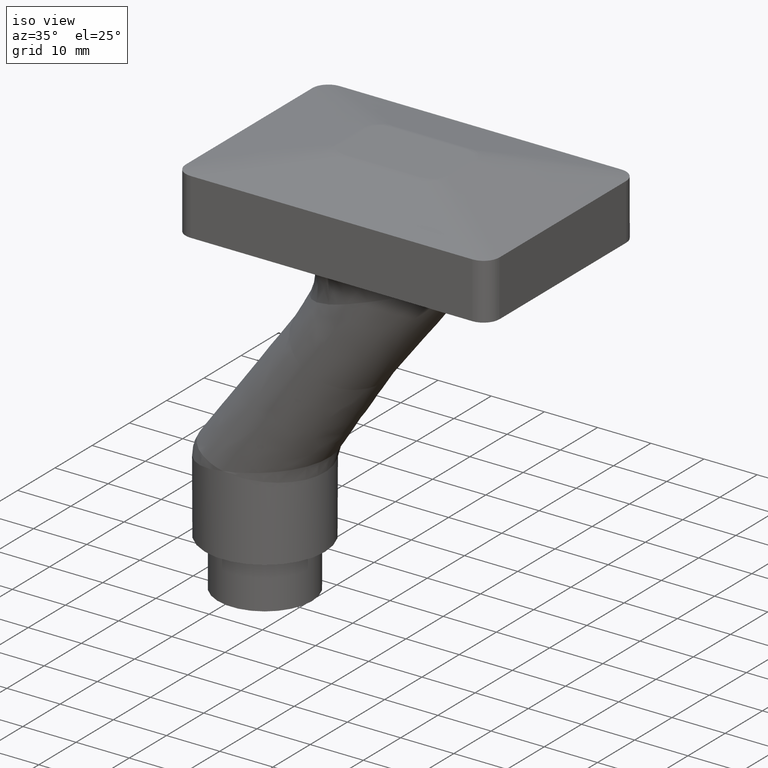
[diagram: clean part render]
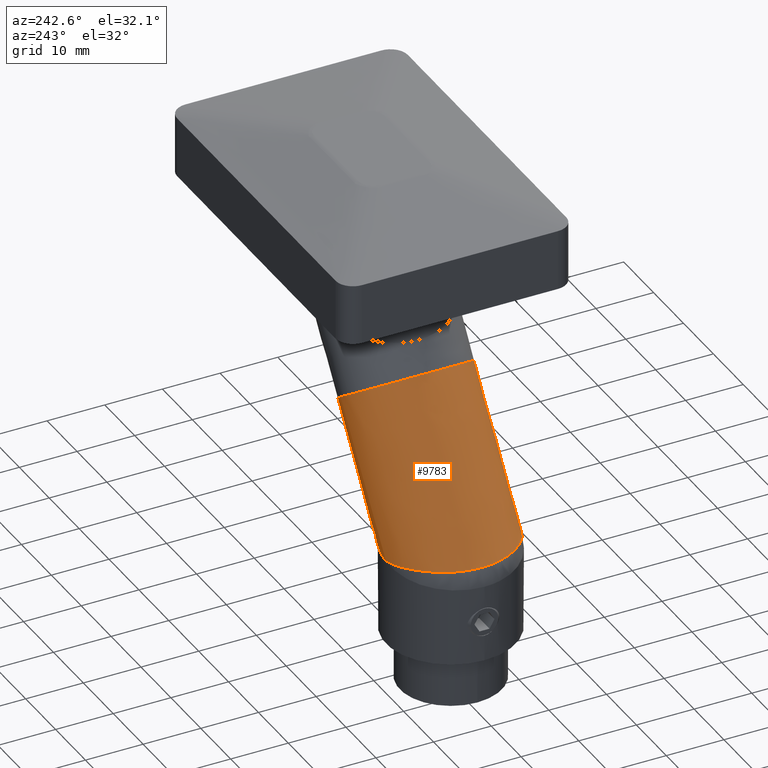
[diagram: tour spotlight — one face highlighted and labeled with its STEP entity id]
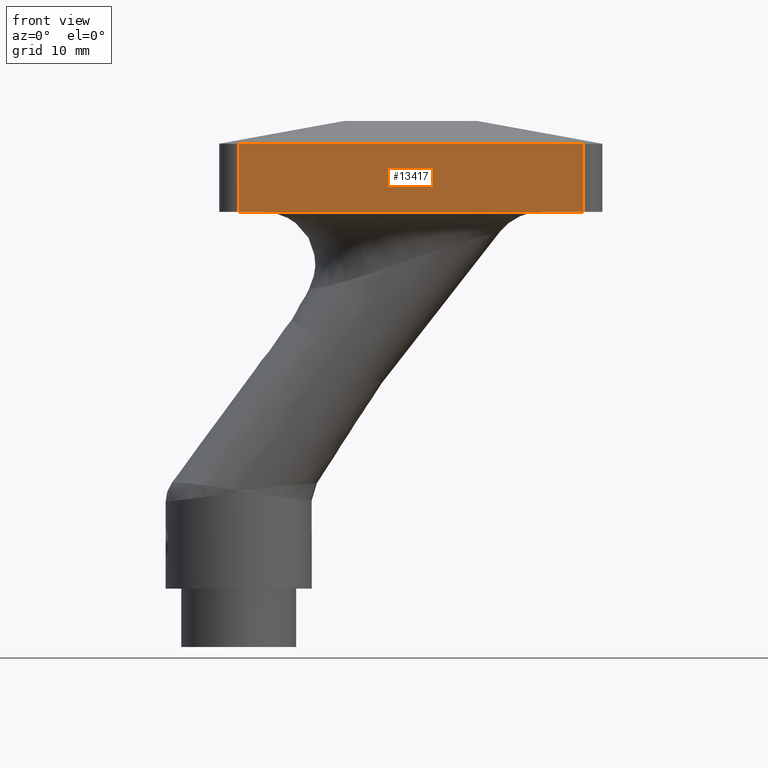
[diagram: tour spotlight — one face highlighted and labeled with its STEP entity id]
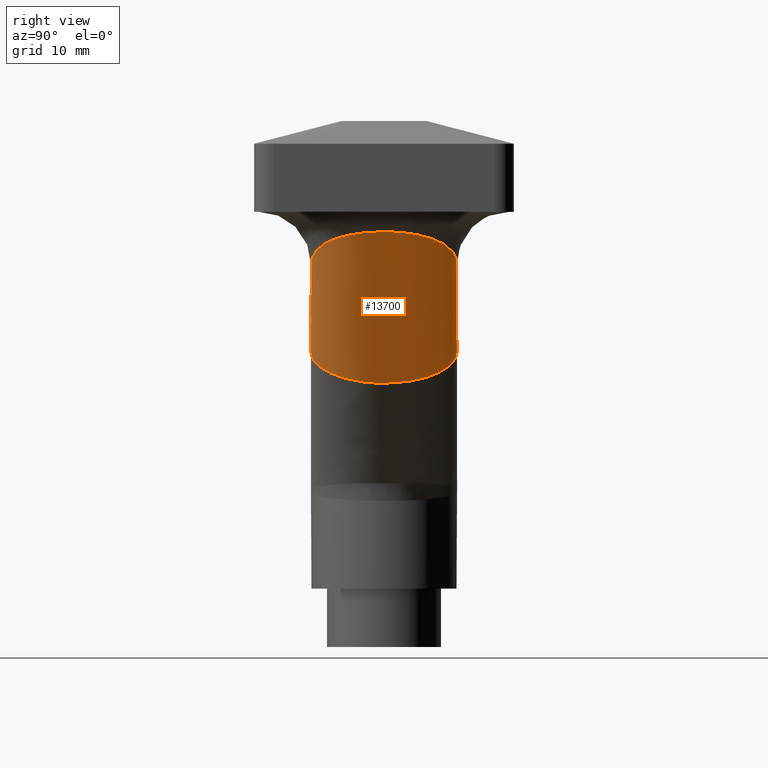
[diagram: tour spotlight — one face highlighted and labeled with its STEP entity id]
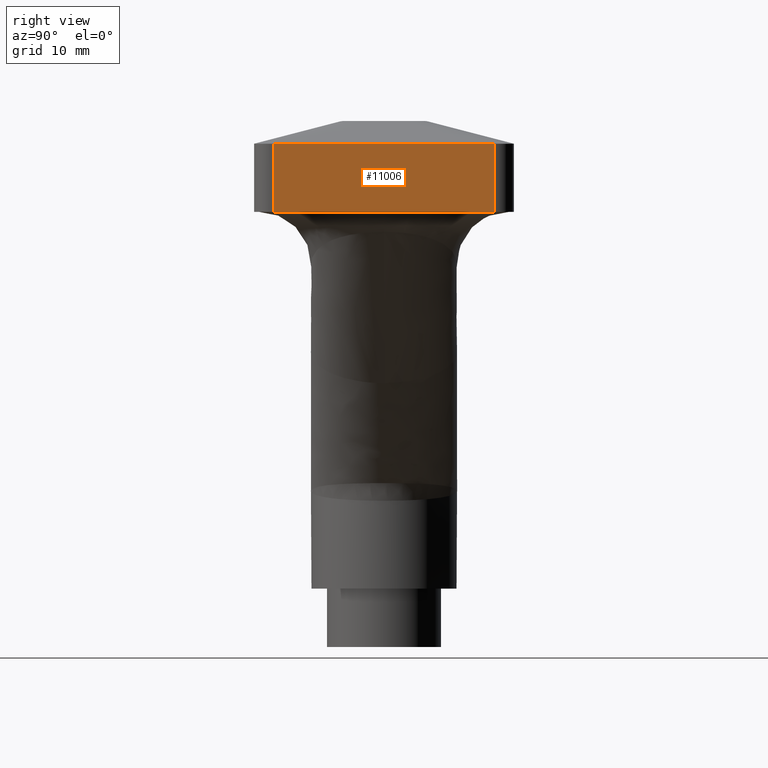
[diagram: tour spotlight — one face highlighted and labeled with its STEP entity id]
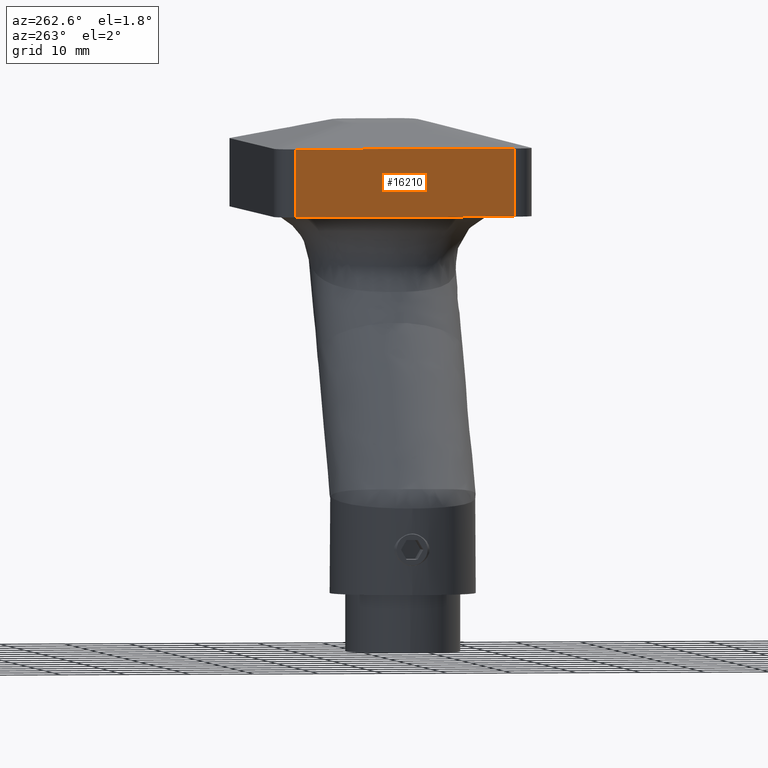
[diagram: tour spotlight — one face highlighted and labeled with its STEP entity id]
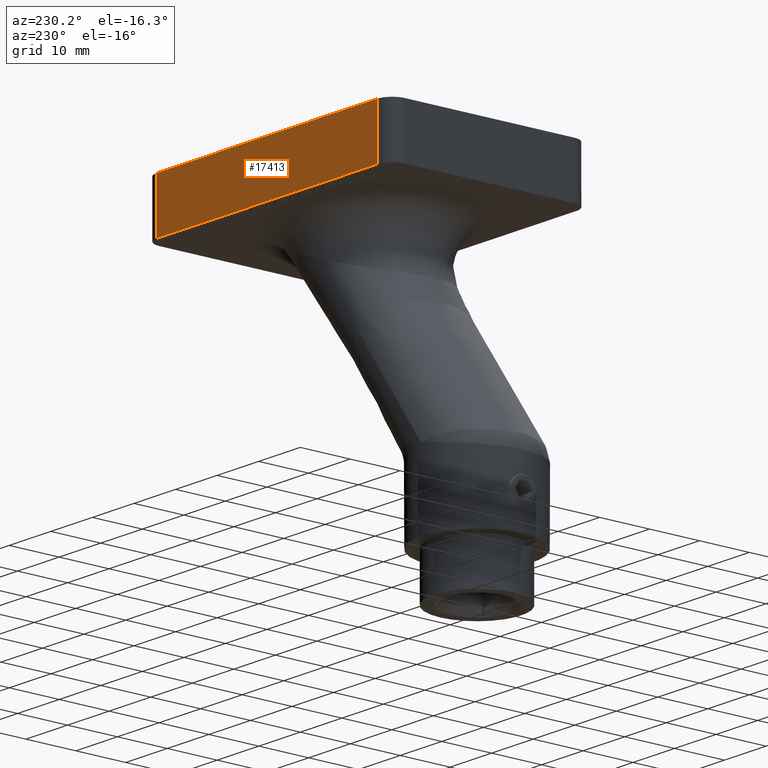
[diagram: tour spotlight — one face highlighted and labeled with its STEP entity id]
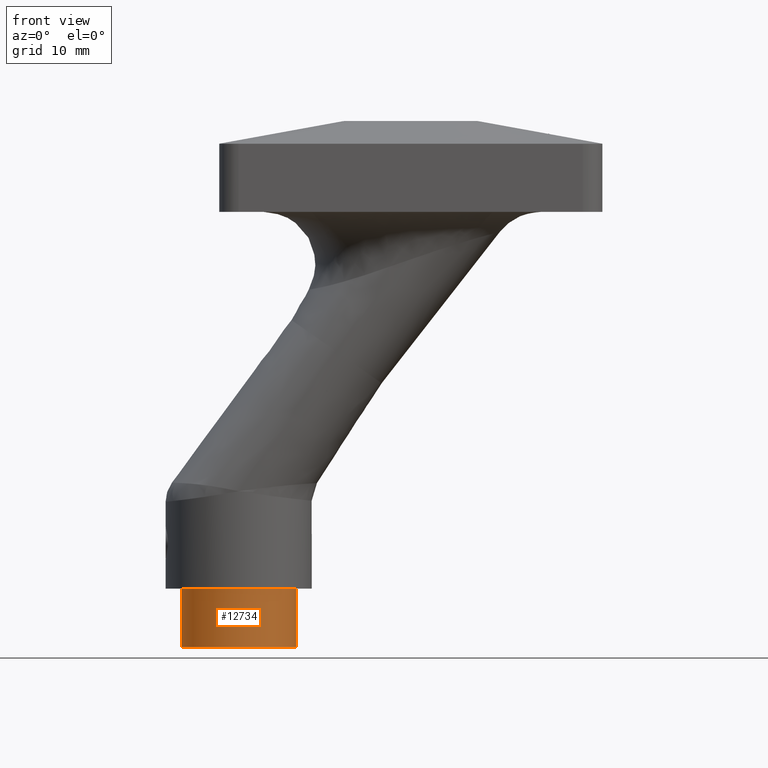
[diagram: tour spotlight — one face highlighted and labeled with its STEP entity id]
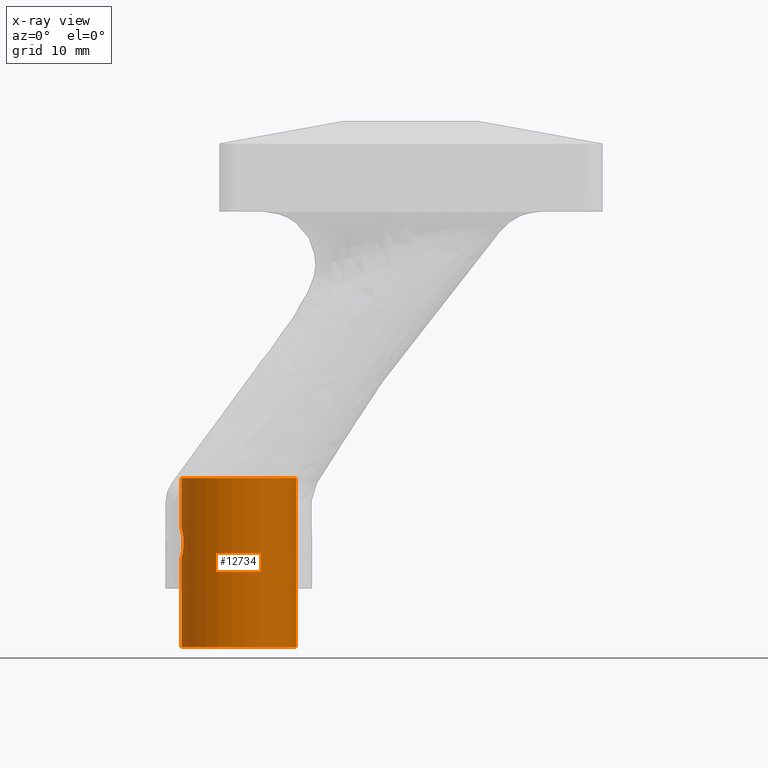
[diagram: x-ray of the same camera — body ghosted, this tour face saturated]
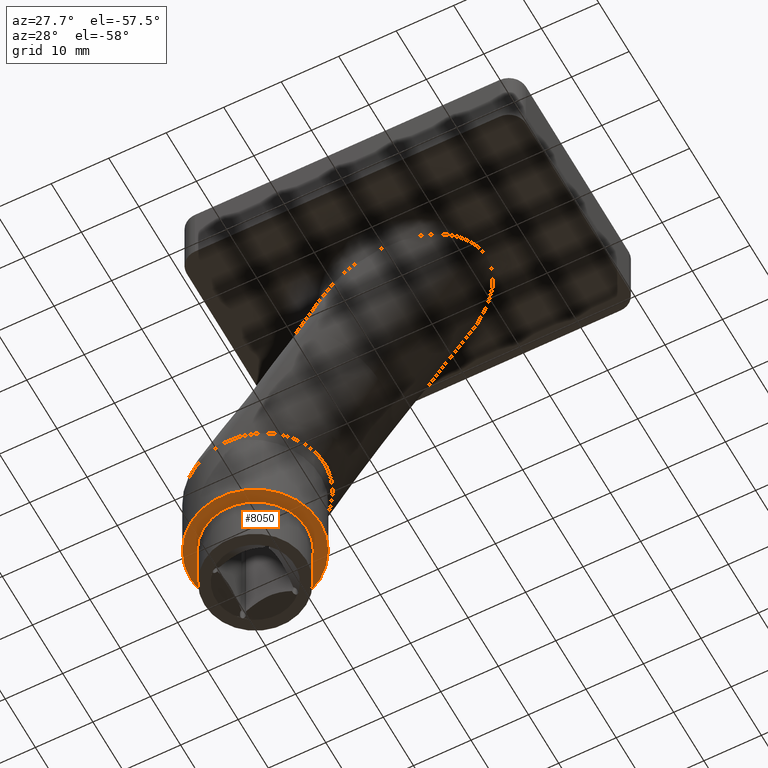
[diagram: tour spotlight — one face highlighted and labeled with its STEP entity id]
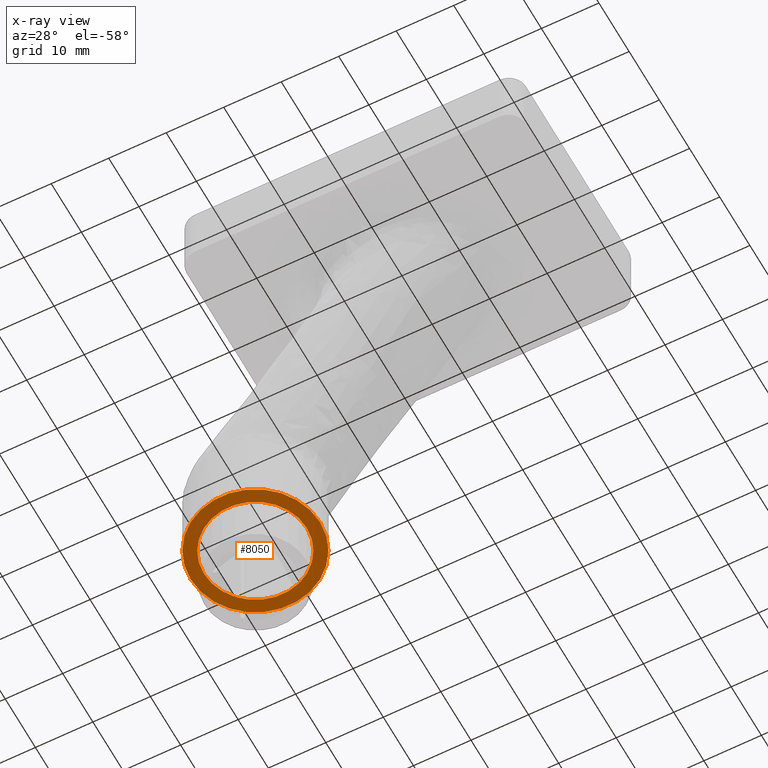
[diagram: x-ray of the same camera — body ghosted, this tour face saturated]
A machine part: a face-by-face anatomy tour. The part has 321 B-rep faces; the first image is the clean iso view, then the 8 largest visible faces are spotlighted one at a time (largest first), each with its STEP entity span.

Face 1 — auxiliary view, entity #9783. In plain terms, the highlighted face is a freeform B-spline surface patch.
Definition (entity closure, byte-faithful):
#212 = CARTESIAN_POINT ( 'NONE',  ( -18.67549453337363019, -8.652442950526745946, -42.06809636578782374 ) ) ;
#274 = CARTESIAN_POINT ( 'NONE',  ( -24.97044085197500252, -11.16962558149342755, -42.79392909316064930 ) ) ;
#353 = CARTESIAN_POINT ( 'NONE',  ( -36.26974499272749597, 3.481343007490588004, -41.70017761565001280 ) ) ;
#413 = CARTESIAN_POINT ( 'NONE',  ( -26.49744186247852085, -11.24999970915255787, -43.00000000000000000 ) ) ;
#615 = CARTESIAN_POINT ( 'NONE',  ( -21.30311468171667144, 10.22483602625616683, -42.33754735207398312 ) ) ;
#1396 = CARTESIAN_POINT ( 'NONE',  ( -11.44553792849119667, -11.25000000000000178, -21.50000000000000355 ) ) ;
#1400 = CARTESIAN_POINT ( 'NONE',  ( -33.60561137271892562, 7.994935632289566385, -41.87187639048165977 ) ) ;
#1578 = CARTESIAN_POINT ( 'NONE',  ( -35.76806583284945873, 4.797240771286620742, -41.72379266455983782 ) ) ;
#1614 = EDGE_LOOP ( 'NONE', ( #16622, #17608 ) ) ;
#1730 = CARTESIAN_POINT ( 'NONE',  ( -19.61380637851528519, -9.315542654955892843, -42.15774418003532276 ) ) ;
#1754 = CARTESIAN_POINT ( 'NONE',  ( -34.90833888976626298, 6.337892400330755294, -41.77322881524687403 ) ) ;
#1843 = CARTESIAN_POINT ( 'NONE',  ( -26.49740553563398748, 11.24999970083354839, -43.00000000000000711 ) ) ;
#1963 = CARTESIAN_POINT ( 'NONE',  ( -26.33327124109537820, -11.24876444419360944, -43.00000000000000000 ) ) ;
#2074 = CARTESIAN_POINT ( 'NONE',  ( -11.37636323986339448, 11.24944478552603755, -21.54843663843049839 ) ) ;
#2784 = CARTESIAN_POINT ( 'NONE',  ( -25.37112268140403870, 11.25000000000000355, -11.74920058203220208 ) ) ;
#2981 = CARTESIAN_POINT ( 'NONE',  ( -34.71820574631910716, -6.647426525926936947, -41.78429616181379913 ) ) ;
#3020 = CARTESIAN_POINT ( 'NONE',  ( -17.52051141143902768, -7.638676014643948520, -41.96722200294333049 ) ) ;
#3045 = CARTESIAN_POINT ( 'NONE',  ( -29.88872921201541999, -10.59620755382236013, -42.34511317375253014 ) ) ;
#3108 = CARTESIAN_POINT ( 'NONE',  ( -26.84644697218160303, -11.25007906942719949, -42.93028372434048379 ) ) ;
#3141 = CARTESIAN_POINT ( 'NONE',  ( -15.55563297271906009, -4.812852126086182736, -41.82555227633538664 ) ) ;
#3165 = CARTESIAN_POINT ( 'NONE',  ( -31.73214713258474973, -9.586074154170978190, -42.07258374374916343 ) ) ;
#3258 = CARTESIAN_POINT ( 'NONE',  ( -3.835742352708164216, -10.91530692638435518, -43.00000000000000711 ) ) ;
#3459 = VERTEX_POINT ( 'NONE', #6076 ) ;
#4112 =( BOUNDED_SURFACE ( )  B_SPLINE_SURFACE ( 3, 1, ( 
 ( #7734, #14464 ),
 ( #17528, #13243 ),
 ( #9065, #3258 ),
 ( #13070, #1963 ),
 ( #15874, #10489 ),
 ( #10363, #17283 ),
 ( #2074, #4732 ) ),
 .UNSPECIFIED., .T., .F., .F. ) 
 B_SPLINE_SURFACE_WITH_KNOTS ( ( 4, 3, 4 ),
 ( 2, 2 ),
 ( 0.000000000000000000, 0.5000000000000000000, 1.000000000000000000 ),
 ( 0.000000000000000000, 1.000000000000000000 ),
 .UNSPECIFIED. ) 
 GEOMETRIC_REPRESENTATION_ITEM ( )  RATIONAL_B_SPLINE_SURFACE ( (
 ( 1.000000000000000000, 1.000000000000000000),
 ( 0.3333333333333333703, 0.3333333333333333703),
 ( 0.3333333333333333703, 0.3333333333333333703),
 ( 1.000000000000000000, 1.000000000000000000),
 ( 0.3333333333333332038, 0.3333333333333333703),
 ( 0.3333333333333332038, 0.3333333333333333703),
 ( 1.000000000000000000, 1.000000000000000000) ) ) 
 REPRESENTATION_ITEM ( '' )  SURFACE ( )  );
#4448 = CARTESIAN_POINT ( 'NONE',  ( -16.33176998081586362, -6.148012655563179329, -41.87790047838266361 ) ) ;
#4587 = CARTESIAN_POINT ( 'NONE',  ( -36.71754490755088085, 1.408610342121324521, -41.68228932781822493 ) ) ;
#4647 = CARTESIAN_POINT ( 'NONE',  ( -30.83281530770053180, -10.13000634082178841, -42.19755605091935280 ) ) ;
#4676 = CARTESIAN_POINT ( 'NONE',  ( -15.56636670400174438, 4.829636278778485448, -41.82735416059172451 ) ) ;
#4732 = CARTESIAN_POINT ( 'NONE',  ( -26.66672875890463246, 11.24876444419360944, -43.00000000000000000 ) ) ;
#4788 = CARTESIAN_POINT ( 'NONE',  ( -14.44738675272971129, 0.3956377533312323558, -41.75989195142176413 ) ) ;
#4907 = CARTESIAN_POINT ( 'NONE',  ( -17.02172422566618337, 7.084969823060153438, -41.92975248700832935 ) ) ;
#5310 = EDGE_CURVE ( 'NONE', #6182, #6182, #15462, .T. ) ;
#5630 = CARTESIAN_POINT ( 'NONE',  ( -34.71079909170330069, 6.632349529444701908, -41.78614252841698828 ) ) ;
#5795 = CARTESIAN_POINT ( 'NONE',  ( -25.73073873401994405, -11.23374277655336329, -42.89589745862171810 ) ) ;
#5817 = CARTESIAN_POINT ( 'NONE',  ( -35.26589933880523375, -5.747314081029824884, -41.75086506561187605 ) ) ;
#5878 = CARTESIAN_POINT ( 'NONE',  ( -36.70021358514771492, -1.417082056707265503, -41.68297337607747721 ) ) ;
#5913 = CARTESIAN_POINT ( 'NONE',  ( -22.73432130963582409, -10.73974717088506914, -42.50524593702208875 ) ) ;
#5937 = CARTESIAN_POINT ( 'NONE',  ( -36.46263677427312189, 2.793252271543858800, -41.69234490457471054 ) ) ;
#6076 = CARTESIAN_POINT ( 'NONE',  ( -26.49744186247852085, -11.24999970915255787, -43.00000000000000000 ) ) ;
#6082 = CARTESIAN_POINT ( 'NONE',  ( -20.61203853632175509, 9.902468620232543373, -42.26142051268448796 ) ) ;
#6182 = VERTEX_POINT ( 'NONE', #17897 ) ;
#6196 = CARTESIAN_POINT ( 'NONE',  ( -15.09625901240593393, 3.785277722537451872, -41.79751512003887370 ) ) ;
#6255 = CARTESIAN_POINT ( 'NONE',  ( -14.52694335336028963, -1.526745321984547932, -41.76398841502003023 ) ) ;
#6492 = CARTESIAN_POINT ( 'NONE',  ( -26.49740553563398748, 11.24999970083354839, -43.00000000000000711 ) ) ;
#6925 = CARTESIAN_POINT ( 'NONE',  ( -26.49740553563398748, 11.24999970083354839, -43.00000000000000711 ) ) ;
#7108 = CARTESIAN_POINT ( 'NONE',  ( -27.19373799231003730, 11.22909606814705796, -42.86068992291664870 ) ) ;
#7170 = CARTESIAN_POINT ( 'NONE',  ( -31.15396633801582738, 9.971552100525089557, -42.14926058579177237 ) ) ;
#7210 = CARTESIAN_POINT ( 'NONE',  ( -23.47081771630665159, -10.93041374901411977, -42.59762345750834100 ) ) ;
#7275 = CARTESIAN_POINT ( 'NONE',  ( -18.37442468150936392, -8.407903276011357008, -42.04099592436256927 ) ) ;
#7300 = CARTESIAN_POINT ( 'NONE',  ( -33.35750594753709208, -8.270735272103523883, -41.89167639224123008 ) ) ;
#7334 = CARTESIAN_POINT ( 'NONE',  ( -14.86323113518371919, -3.014314770272106703, -41.78315085765009229 ) ) ;
#7355 = CARTESIAN_POINT ( 'NONE',  ( -35.74711596644398526, -4.802997018127014961, -41.72479346352811547 ) ) ;
#7510 = B_SPLINE_CURVE_WITH_KNOTS ( 'NONE', 3,
 ( #8544, #16992, #5795, #274, #14295, #7210, #5913, #15699, #10139, #1730, #8605, #212, #7275, #3020, #12829, #4448, #14242, #11561, #3141, #17107, #17052, #7334, #8720, #6255, #11778, #4788, #11892, #9126, #13299, #7610, #6196, #4676, #16040, #17405, #8889, #4907, #7672, #14694, #14576, #10248, #9007, #6082, #615, #10422, #15983, #17463, #16101, #1843 ),
 .UNSPECIFIED., .F., .F.,
 ( 4, 2, 2, 2, 2, 2, 2, 2, 2, 2, 2, 2, 2, 2, 2, 2, 2, 2, 2, 2, 2, 2, 2, 4 ),
 ( -3.314411086286442066E-05, 0.001126460717489166305, 0.002286065545841196780, 0.004605275202545258163, 0.006924484859249319980, 0.008084089687601355226, 0.009243694515953389604, 0.01156290417265747050, 0.01272250900100951355, 0.01388211382936155487, 0.01504171865771359445, 0.01620132348606563577, 0.01852053314276972187, 0.01968013797112175972, 0.02083974279947379757, 0.02315895245617787673, 0.02431855728452992152, 0.02547816211288195937, 0.02779737176958604200, 0.02895697659793808332, 0.03011658142629012463, 0.03243579108299420033, 0.03475500073969828990, 0.03707421039640236560 ),
 .UNSPECIFIED. ) ;
#7610 = CARTESIAN_POINT ( 'NONE',  ( -14.85719317031429831, 3.061333257975503042, -41.78347134121836604 ) ) ;
#7672 = CARTESIAN_POINT ( 'NONE',  ( -17.53350472101876889, 7.648889652399719630, -41.96983037375650838 ) ) ;
#7734 = CARTESIAN_POINT ( 'NONE',  ( -11.37636323986339448, 11.24944478552603755, -21.54843663843049839 ) ) ;
#7985 = EDGE_CURVE ( 'NONE', #17295, #3459, #18019, .T. ) ;
#8268 = CARTESIAN_POINT ( 'NONE',  ( -31.74200534088550540, 9.601046678083827501, -42.07038863793895445 ) ) ;
#8323 = CARTESIAN_POINT ( 'NONE',  ( 2.480046824421650253, -11.25000000000000178, -31.25079941796780858 ) ) ;
#8390 = CARTESIAN_POINT ( 'NONE',  ( -33.36051085730387200, 8.246509837573492874, -41.89396643209781246 ) ) ;
#8498 = CARTESIAN_POINT ( 'NONE',  ( -11.44553792849119667, -11.25000000000000178, -21.50000000000000355 ) ) ;
#8507 = CARTESIAN_POINT ( 'NONE',  ( -27.88432622615434653, 11.14557475770229189, -42.72301218326608563 ) ) ;
#8544 = CARTESIAN_POINT ( 'NONE',  ( -26.49744186247852085, -11.24999970915255787, -43.00000000000000000 ) ) ;
#8605 = CARTESIAN_POINT ( 'NONE',  ( -19.29488762788049172, -9.105838059739131296, -42.12645107730225646 ) ) ;
#8686 = CARTESIAN_POINT ( 'NONE',  ( -27.19414818780689203, -11.22905710398448065, -42.85999719581427314 ) ) ;
#8720 = CARTESIAN_POINT ( 'NONE',  ( -14.76447804007259279, -2.645136980152075878, -41.77746538713096669 ) ) ;
#8747 = CARTESIAN_POINT ( 'NONE',  ( -34.30079756573455541, -7.212716170846722896, -41.81286182495382064 ) ) ;
#8801 = CARTESIAN_POINT ( 'NONE',  ( -36.76531024072399845, -0.7118016204046980766, -41.68055021327232623 ) ) ;
#8889 = CARTESIAN_POINT ( 'NONE',  ( -16.34324053834527746, 6.160750475966376705, -41.88006857843325292 ) ) ;
#9007 = CARTESIAN_POINT ( 'NONE',  ( -19.62881722192862810, 9.323151914227539194, -42.16079119279969945 ) ) ;
#9065 = CARTESIAN_POINT ( 'NONE',  ( 2.410184874797115739, -11.47298017333802456, -31.20188155420668252 ) ) ;
#9126 = CARTESIAN_POINT ( 'NONE',  ( -14.55084544578695116, 1.549003161323783573, -41.76579666187354434 ) ) ;
#9667 = CARTESIAN_POINT ( 'NONE',  ( -32.84552777630138820, 8.727980561677556537, -41.94476691087219677 ) ) ;
#9731 = CARTESIAN_POINT ( 'NONE',  ( -32.57492316033217605, 8.958208324925710286, -41.97359087593343219 ) ) ;
#9732 = EDGE_CURVE ( 'NONE', #3459, #17295, #7510, .T. ) ;
#9783 = ADVANCED_FACE ( 'NONE', ( #15961, #14441 ), #4112, .T. ) ;
#9788 = CARTESIAN_POINT ( 'NONE',  ( -29.24570624310976896, 10.83494817575023106, -42.46082394437875962 ) ) ;
#9984 = CARTESIAN_POINT ( 'NONE',  ( -28.22995505914603243, -11.08210663897775738, -42.65354236689768896 ) ) ;
#10139 = CARTESIAN_POINT ( 'NONE',  ( -20.59680241283795255, -9.896178615167675829, -42.25832111027363425 ) ) ;
#10248 = CARTESIAN_POINT ( 'NONE',  ( -19.30985386961887684, 9.113935030668836035, -42.12947335384145475 ) ) ;
#10363 = CARTESIAN_POINT ( 'NONE',  ( -25.30126073177951085, 11.47298017333803166, -11.79811844579332636 ) ) ;
#10422 = CARTESIAN_POINT ( 'NONE',  ( -22.75026577069895239, 10.74382202575083589, -42.50826203046188567 ) ) ;
#10489 = CARTESIAN_POINT ( 'NONE',  ( -48.83080012948258997, -11.58222196200286191, -43.00000000000000711 ) ) ;
#11219 = CARTESIAN_POINT ( 'NONE',  ( 2.480046824421650253, 11.25000000000000000, -31.25079941796780858 ) ) ;
#11224 = CARTESIAN_POINT ( 'NONE',  ( -34.07176437003518998, 7.470841054246738722, -41.83286352122983232 ) ) ;
#11344 = CARTESIAN_POINT ( 'NONE',  ( -26.84647190970682118, 11.25008020219289051, -42.93059112480106876 ) ) ;
#11407 = CARTESIAN_POINT ( 'NONE',  ( -36.45746657174598226, -2.812855128050323117, -41.69240597753272937 ) ) ;
#11527 = CARTESIAN_POINT ( 'NONE',  ( -32.01761853252341439, -9.386608271051406049, -42.03690606680891051 ) ) ;
#11561 = CARTESIAN_POINT ( 'NONE',  ( -15.73154723736372773, -5.156218820118170676, -41.83693266779444997 ) ) ;
#11585 = CARTESIAN_POINT ( 'NONE',  ( -35.88893527579215714, -4.477165111045733781, -41.71781609570884797 ) ) ;
#11642 = CARTESIAN_POINT ( 'NONE',  ( -27.88633773778898117, -11.14510873542594993, -42.72150390592500457 ) ) ;
#11778 = CARTESIAN_POINT ( 'NONE',  ( -14.44621132675872133, -0.7666330156191127898, -41.75968564373633285 ) ) ;
#11892 = CARTESIAN_POINT ( 'NONE',  ( -14.46831997637551837, 0.7812729513630268796, -41.76109300331083318 ) ) ;
#12597 = CARTESIAN_POINT ( 'NONE',  ( -25.37112268140403870, -11.25000000000000178, -11.74920058203220208 ) ) ;
#12796 = CARTESIAN_POINT ( 'NONE',  ( -32.84453637132972403, -8.748811646207499848, -41.94097968305695900 ) ) ;
#12829 = CARTESIAN_POINT ( 'NONE',  ( -17.00939149402502792, -7.074044232185330294, -41.92731274484978599 ) ) ;
#12917 = CARTESIAN_POINT ( 'NONE',  ( -29.23887472013877797, -10.83614879186670521, -42.46036716807706313 ) ) ;
#13035 = CARTESIAN_POINT ( 'NONE',  ( -35.45942183275402471, 5.429316709303480870, -41.73951144207586594 ) ) ;
#13070 = CARTESIAN_POINT ( 'NONE',  ( -11.51471261711899885, -11.24944478552603755, -21.45156336156950871 ) ) ;
#13243 = CARTESIAN_POINT ( 'NONE',  ( -4.169199870517416251, 11.58222196200286014, -43.00000000000000711 ) ) ;
#13299 = CARTESIAN_POINT ( 'NONE',  ( -14.61290611915297077, 1.932862014330561928, -41.76932623289953028 ) ) ;
#14019 = CARTESIAN_POINT ( 'NONE',  ( -34.29281245312996873, 7.198316773604748420, -41.81594271333526081 ) ) ;
#14198 = CARTESIAN_POINT ( 'NONE',  ( -36.65126648305218993, -1.769648268667376900, -41.68481421432571210 ) ) ;
#14238 = ORIENTED_EDGE ( 'NONE', *, *, #5310, .F. ) ;
#14242 = CARTESIAN_POINT ( 'NONE',  ( -16.12015721761097709, -5.824885037059870818, -41.86313994174462749 ) ) ;
#14295 = CARTESIAN_POINT ( 'NONE',  ( -24.59329775538077101, -11.12175070483792894, -42.74390088625545303 ) ) ;
#14321 = CARTESIAN_POINT ( 'NONE',  ( -36.78171429046258112, -0.3579297324605069663, -41.67995827131715458 ) ) ;
#14375 = CARTESIAN_POINT ( 'NONE',  ( -35.43529477311308540, -5.438512734510801749, -41.74133566001120954 ) ) ;
#14441 = FACE_OUTER_BOUND ( 'NONE', #1614, .T. ) ;
#14464 = CARTESIAN_POINT ( 'NONE',  ( -26.66672875890463246, 11.24876444419360944, -43.00000000000000000 ) ) ;
#14576 = CARTESIAN_POINT ( 'NONE',  ( -18.69040918555202424, 8.661663572839545466, -42.07105290106350992 ) ) ;
#14694 = CARTESIAN_POINT ( 'NONE',  ( -18.38891769223814521, 8.417445885345212986, -42.04387306792422407 ) ) ;
#14849 = EDGE_LOOP ( 'NONE', ( #14238 ) ) ;
#15462 =( BOUNDED_CURVE ( )  B_SPLINE_CURVE ( 3, ( #1396, #8323, #11219, #15545, #2784, #12597, #8498 ),
 .UNSPECIFIED., .T., .F. ) 
 B_SPLINE_CURVE_WITH_KNOTS ( ( 4, 3, 4 ),
 ( 0.000000000000000000, 3.141592653589793116, 6.283185307179586232 ),
 .UNSPECIFIED. ) 
 CURVE ( )  GEOMETRIC_REPRESENTATION_ITEM ( )  RATIONAL_B_SPLINE_CURVE ( ( 1.000000000000000000, 0.3333333333333333703, 0.3333333333333333703, 1.000000000000000000, 0.3333333333333333703, 0.3333333333333333703, 1.000000000000000000 ) ) 
 REPRESENTATION_ITEM ( '' )  );
#15545 = CARTESIAN_POINT ( 'NONE',  ( -11.44553792849119667, 11.25000000000000178, -21.50000000000000355 ) ) ;
#15549 = CARTESIAN_POINT ( 'NONE',  ( -29.90863321556455290, 10.58834983053615808, -42.34364437839864337 ) ) ;
#15665 = CARTESIAN_POINT ( 'NONE',  ( -36.26653646516678009, -3.489636679571062494, -41.70011725016897230 ) ) ;
#15699 = CARTESIAN_POINT ( 'NONE',  ( -21.28711163850054788, -10.21905763204597051, -42.33438410757439385 ) ) ;
#15874 = CARTESIAN_POINT ( 'NONE',  ( -25.43961010903512232, -11.02590939771405054, -11.70124516893233135 ) ) ;
#15961 = FACE_OUTER_BOUND ( 'NONE', #14849, .T. ) ;
#15983 = CARTESIAN_POINT ( 'NONE',  ( -23.48517732153319315, 10.93317119163799411, -42.60032888766740911 ) ) ;
#16040 = CARTESIAN_POINT ( 'NONE',  ( -15.74180294037960337, 5.170773737509996693, -41.83878426718529653 ) ) ;
#16101 = CARTESIAN_POINT ( 'NONE',  ( -25.73135561405320360, 11.24982303512010873, -42.89605107613715518 ) ) ;
#16622 = ORIENTED_EDGE ( 'NONE', *, *, #9732, .T. ) ;
#16900 = CARTESIAN_POINT ( 'NONE',  ( -28.22885150022431588, 11.08270746022168218, -42.65505747722824736 ) ) ;
#16992 = CARTESIAN_POINT ( 'NONE',  ( -26.11443183140334057, -11.24991261649858210, -42.94791564679314888 ) ) ;
#17052 = CARTESIAN_POINT ( 'NONE',  ( -15.10089345704805197, -3.745242335830138547, -41.79725859915007646 ) ) ;
#17075 = CARTESIAN_POINT ( 'NONE',  ( -31.14062045942882762, -9.957350533552562055, -42.15276380273107293 ) ) ;
#17107 = CARTESIAN_POINT ( 'NONE',  ( -15.24048209949272525, -4.108118430975341795, -41.80572469061847585 ) ) ;
#17186 = CARTESIAN_POINT ( 'NONE',  ( -36.78206802825981470, 0.7074131591062985391, -41.67997009624426852 ) ) ;
#17283 = CARTESIAN_POINT ( 'NONE',  ( -49.16425764729185488, 10.91530692638435696, -43.00000000000000711 ) ) ;
#17295 = VERTEX_POINT ( 'NONE', #6492 ) ;
#17405 = CARTESIAN_POINT ( 'NONE',  ( -16.13147862612754579, 5.838574944419416823, -41.86522197593343009 ) ) ;
#17463 = CARTESIAN_POINT ( 'NONE',  ( -24.97560501124797128, 11.18618723269501736, -42.79421266199248208 ) ) ;
#17528 = CARTESIAN_POINT ( 'NONE',  ( 2.548534252052718774, 11.02590939771405409, -31.29875483106767220 ) ) ;
#17608 = ORIENTED_EDGE ( 'NONE', *, *, #7985, .T. ) ;
#17897 = CARTESIAN_POINT ( 'NONE',  ( -11.44553792849119667, -11.25000000000000178, -21.50000000000000355 ) ) ;
#18019 = B_SPLINE_CURVE_WITH_KNOTS ( 'NONE', 3,
 ( #6925, #11344, #7108, #8507, #16900, #9788, #15549, #7170, #8268, #9731, #9667, #8390, #1400, #11224, #14019, #5630, #1754, #13035, #1578, #353, #5937, #4587, #17186, #14321, #8801, #5878, #14198, #11407, #15665, #11585, #7355, #14375, #5817, #2981, #8747, #7300, #12796, #11527, #3165, #17075, #4647, #3045, #12917, #9984, #11642, #8686, #3108, #413 ),
 .UNSPECIFIED., .F., .F.,
 ( 4, 2, 2, 2, 2, 2, 2, 2, 2, 2, 2, 2, 2, 2, 2, 2, 2, 2, 2, 2, 2, 2, 2, 4 ),
 ( -2.922448527355780141E-05, 0.001038474625798196417, 0.002106173736869950720, 0.004241571959013459327, 0.006376970181156967066, 0.007444669292228722236, 0.008512368403300479142, 0.009580067514372231710, 0.01064776662544398775, 0.01278316484758748074, 0.01491856306973097721, 0.01705396129187447193, 0.01812166040294621930, 0.01918935951401796319, 0.02132475773616146139, 0.02239245684723320876, 0.02346015595830495959, 0.02559555418044844391, 0.02773095240259193170, 0.02879865151366366866, 0.02986635062473540214, 0.03200174884687888993, 0.03306944795795062342, 0.03413714706902237078 ),
 .UNSPECIFIED. ) ;

Face 2 — front view, entity #13417. In plain terms, the highlighted planar face has unit normal (0, 1, 0).
Definition (entity closure, byte-faithful):
#259 = CARTESIAN_POINT ( 'NONE',  ( 26.49999999999999645, -19.99999999999999645, 0.000000000000000000 ) ) ;
#419 = EDGE_CURVE ( 'NONE', #10309, #8626, #13441, .T. ) ;
#1937 = DIRECTION ( 'NONE',  ( 0.000000000000000000, -0.000000000000000000, 1.000000000000000000 ) ) ;
#3139 = CARTESIAN_POINT ( 'NONE',  ( 26.49999999999999289, -20.00000000000000000, 10.50000000000000000 ) ) ;
#3526 = DIRECTION ( 'NONE',  ( -0.000000000000000000, 0.000000000000000000, -1.000000000000000000 ) ) ;
#3654 = PLANE ( 'NONE',  #10198 ) ;
#3780 = CARTESIAN_POINT ( 'NONE',  ( -29.49999999999999289, -19.99999999999999645, 10.50000000000000000 ) ) ;
#3788 = VECTOR ( 'NONE', #14320, 1000.000000000000000 ) ;
#3954 = EDGE_CURVE ( 'NONE', #5162, #14192, #6841, .T. ) ;
#5162 = VERTEX_POINT ( 'NONE', #8454 ) ;
#6713 = FACE_OUTER_BOUND ( 'NONE', #16097, .T. ) ;
#6841 = LINE ( 'NONE', #9909, #7071 ) ;
#7071 = VECTOR ( 'NONE', #12840, 1000.000000000000000 ) ;
#7299 = CARTESIAN_POINT ( 'NONE',  ( -29.49999999999999289, -19.99999999999999645, 0.000000000000000000 ) ) ;
#7320 = LINE ( 'NONE', #17504, #16258 ) ;
#7594 = CARTESIAN_POINT ( 'NONE',  ( -26.49999999999999289, -19.99999999999999645, 0.000000000000000000 ) ) ;
#8454 = CARTESIAN_POINT ( 'NONE',  ( -26.49999999999999289, -19.99999999999999645, 10.50000000000000000 ) ) ;
#8626 = VERTEX_POINT ( 'NONE', #259 ) ;
#9296 = DIRECTION ( 'NONE',  ( 0.000000000000000000, 1.000000000000000000, 0.000000000000000000 ) ) ;
#9909 = CARTESIAN_POINT ( 'NONE',  ( -29.49999999999999289, -19.99999999999999645, 10.50000000000000000 ) ) ;
#10198 = AXIS2_PLACEMENT_3D ( 'NONE', #3780, #9296, #1937 ) ;
#10309 = VERTEX_POINT ( 'NONE', #7594 ) ;
#10606 = VECTOR ( 'NONE', #16366, 1000.000000000000000 ) ;
#10922 = ORIENTED_EDGE ( 'NONE', *, *, #17477, .T. ) ;
#12840 = DIRECTION ( 'NONE',  ( 1.000000000000000000, 0.000000000000000000, -0.000000000000000000 ) ) ;
#13417 = ADVANCED_FACE ( 'NONE', ( #6713 ), #3654, .F. ) ;
#13441 = LINE ( 'NONE', #7299, #3788 ) ;
#14192 = VERTEX_POINT ( 'NONE', #3139 ) ;
#14320 = DIRECTION ( 'NONE',  ( 1.000000000000000000, 0.000000000000000000, 0.000000000000000000 ) ) ;
#15198 = LINE ( 'NONE', #17721, #10606 ) ;
#15898 = ORIENTED_EDGE ( 'NONE', *, *, #419, .T. ) ;
#16097 = EDGE_LOOP ( 'NONE', ( #15898, #17093, #16608, #10922 ) ) ;
#16258 = VECTOR ( 'NONE', #3526, 1000.000000000000000 ) ;
#16366 = DIRECTION ( 'NONE',  ( -0.000000000000000000, -0.000000000000000000, 1.000000000000000000 ) ) ;
#16608 = ORIENTED_EDGE ( 'NONE', *, *, #3954, .F. ) ;
#16824 = EDGE_CURVE ( 'NONE', #8626, #14192, #15198, .T. ) ;
#17093 = ORIENTED_EDGE ( 'NONE', *, *, #16824, .T. ) ;
#17477 = EDGE_CURVE ( 'NONE', #5162, #10309, #7320, .T. ) ;
#17504 = CARTESIAN_POINT ( 'NONE',  ( -26.49999999999999289, -19.99999999999999645, 10.50000000000000000 ) ) ;
#17721 = CARTESIAN_POINT ( 'NONE',  ( 26.49999999999999645, -19.99999999999999645, 10.50000000000000000 ) ) ;

Face 3 — right view, entity #13700. In plain terms, the highlighted face is a freeform B-spline surface patch.
Definition (entity closure, byte-faithful):
#290 = CARTESIAN_POINT ( 'NONE',  ( 5.316243049904927354, -9.968661294944068274, -5.519343211838812380 ) ) ;
#403 = CARTESIAN_POINT ( 'NONE',  ( 13.70670344733037638, -1.355252715606880543E-15, -3.076893633488702928 ) ) ;
#462 = CARTESIAN_POINT ( 'NONE',  ( -2.917312237961914523, -11.24693078246511568, -8.320427164051173108 ) ) ;
#513 =( BOUNDED_SURFACE ( )  B_SPLINE_SURFACE ( 3, 1, ( 
 ( #5687, #12598 ),
 ( #5626, #9728 ),
 ( #5506, #12793 ),
 ( #2920, #9976 ),
 ( #11155, #7039 ),
 ( #16827, #12733 ),
 ( #14076, #11339 ) ),
 .UNSPECIFIED., .T., .F., .F. ) 
 B_SPLINE_SURFACE_WITH_KNOTS ( ( 4, 3, 4 ),
 ( 2, 2 ),
 ( 0.000000000000000000, 0.5000000000000000000, 1.000000000000000000 ),
 ( 0.000000000000000000, 1.000000000000000000 ),
 .UNSPECIFIED. ) 
 GEOMETRIC_REPRESENTATION_ITEM ( )  RATIONAL_B_SPLINE_SURFACE ( (
 ( 1.000000000000000000, 1.000000000000000000),
 ( 0.3333333333333333703, 0.3333333333333333703),
 ( 0.3333333333333333703, 0.3333333333333333703),
 ( 1.000000000000000000, 1.000000000000000000),
 ( 0.3333333333333333703, 0.3333333333333333703),
 ( 0.3333333333333333703, 0.3333333333333333703),
 ( 1.000000000000000000, 1.000000000000000000) ) ) 
 REPRESENTATION_ITEM ( '' )  SURFACE ( )  );
#514 = CARTESIAN_POINT ( 'NONE',  ( -5.402626412027115244, -10.98516654026990125, -9.176405043126390382 ) ) ;
#576 = CARTESIAN_POINT ( 'NONE',  ( -14.66808036381738312, -4.733338070191972946, -11.79129905251430088 ) ) ;
#688 = CARTESIAN_POINT ( 'NONE',  ( 10.06832845828597378, 7.249933623520584902, -4.065902915771512305 ) ) ;
#748 = CARTESIAN_POINT ( 'NONE',  ( -14.07464485134559951, 5.823121934838404457, -11.67917382231238932 ) ) ;
#1164 = CARTESIAN_POINT ( 'NONE',  ( 13.70670344733037282, -2.077520377691108076E-15, -3.076893633488702040 ) ) ;
#1396 = CARTESIAN_POINT ( 'NONE',  ( -11.44553792849119667, -11.25000000000000178, -21.50000000000000355 ) ) ;
#1629 = CARTESIAN_POINT ( 'NONE',  ( -6.638093571480373711, -10.71093163339886978, -9.589221733869297992 ) ) ;
#1802 = CARTESIAN_POINT ( 'NONE',  ( 12.97475082236916499, -3.434703371400443572, -3.265495865343051030 ) ) ;
#1860 = CARTESIAN_POINT ( 'NONE',  ( 2.073506906042043685, -10.88035897870554791, -6.594647015706353699 ) ) ;
#1918 = CARTESIAN_POINT ( 'NONE',  ( -7.920681394564289768, 10.35380390795258165, -10.01286716228783114 ) ) ;
#1981 = CARTESIAN_POINT ( 'NONE',  ( -15.31163373991133803, -3.084110848384693071, -11.90485750498204531 ) ) ;
#2032 = CARTESIAN_POINT ( 'NONE',  ( -13.56685308547072033, 6.531758211822004334, -11.57411390438014642 ) ) ;
#2145 = CARTESIAN_POINT ( 'NONE',  ( 13.41911709634750594, 2.209410164428078360, -3.150764212279923537 ) ) ;
#2354 = EDGE_CURVE ( 'NONE', #8171, #8171, #6981, .T. ) ;
#2784 = CARTESIAN_POINT ( 'NONE',  ( -25.37112268140403870, 11.25000000000000355, -11.74920058203220208 ) ) ;
#2920 = CARTESIAN_POINT ( 'NONE',  ( -9.986482695456691872, -11.00022602076202283, -22.52164147283509266 ) ) ;
#3037 = CARTESIAN_POINT ( 'NONE',  ( -8.249795973645293046, -10.22167894102856955, -10.11192777419707234 ) ) ;
#3101 = CARTESIAN_POINT ( 'NONE',  ( -11.62729121412516875, -8.406376070357689301, -11.09968772523090763 ) ) ;
#3214 = CARTESIAN_POINT ( 'NONE',  ( 12.59187649360569239, -4.222154610517640627, -3.366163836614056493 ) ) ;
#3331 = CARTESIAN_POINT ( 'NONE',  ( 9.734842889347197215, 7.524625371531048046, -4.162349150006780185 ) ) ;
#3389 = CARTESIAN_POINT ( 'NONE',  ( 12.35714604701106012, 4.621989326119428476, -3.429747398599871655 ) ) ;
#3448 = CARTESIAN_POINT ( 'NONE',  ( -11.69904026815798659, 8.374776859663876749, -11.12477838397711238 ) ) ;
#3511 = CARTESIAN_POINT ( 'NONE',  ( 11.59018459478719620, 5.697798635348648943, -3.637695703120145119 ) ) ;
#3565 = CARTESIAN_POINT ( 'NONE',  ( -15.17843971967226224, -3.503069769511623743, -11.88252459652023241 ) ) ;
#4302 = FACE_OUTER_BOUND ( 'NONE', #16123, .T. ) ;
#4527 = CARTESIAN_POINT ( 'NONE',  ( 13.56308191101024896, -1.762984659334258186, -3.113011103220093556 ) ) ;
#4641 = CARTESIAN_POINT ( 'NONE',  ( 12.37152105684085868, -4.597187664574183152, -3.424717372915305980 ) ) ;
#4745 = CARTESIAN_POINT ( 'NONE',  ( 13.67011104615651895, 0.8943715204376522232, -3.086312739810866734 ) ) ;
#4802 = CARTESIAN_POINT ( 'NONE',  ( -9.494424158879787967, 9.717333981183523761, -10.50177857805880421 ) ) ;
#4862 = CARTESIAN_POINT ( 'NONE',  ( -7.114142081886055458, 10.59911044232760702, -9.750831985799077728 ) ) ;
#4920 = CARTESIAN_POINT ( 'NONE',  ( -15.52575802570194874, -2.233567608251311842, -11.93995835448179932 ) ) ;
#4978 = CARTESIAN_POINT ( 'NONE',  ( 7.588985604267946883, 8.961270030877452442, -4.803247767919881284 ) ) ;
#5310 = EDGE_CURVE ( 'NONE', #6182, #6182, #15462, .T. ) ;
#5506 = CARTESIAN_POINT ( 'NONE',  ( -23.60288978464058118, -15.71510777628894218, -12.98733058565637322 ) ) ;
#5626 = CARTESIAN_POINT ( 'NONE',  ( -26.52100025070958367, 6.285344265235106143, -10.94404763998619856 ) ) ;
#5687 = CARTESIAN_POINT ( 'NONE',  ( -12.90459316152569791, 11.00022602076202283, -20.47835852716491800 ) ) ;
#5869 = CARTESIAN_POINT ( 'NONE',  ( 4.517879713464933111, -10.24548089631259629, -5.779106930611204618 ) ) ;
#5929 = CARTESIAN_POINT ( 'NONE',  ( 10.73806762584805519, -6.633848803292882401, -3.873184226218860271 ) ) ;
#5986 = CARTESIAN_POINT ( 'NONE',  ( 4.112878539652378151, -10.37107717481577218, -5.912309985448610306 ) ) ;
#6044 = CARTESIAN_POINT ( 'NONE',  ( 11.61786126772138239, -5.662377859090911514, -3.628611296797735530 ) ) ;
#6182 = VERTEX_POINT ( 'NONE', #17897 ) ;
#6212 = CARTESIAN_POINT ( 'NONE',  ( 13.14378236849605130, 3.047110697412191982, -3.222152717272851241 ) ) ;
#6269 = CARTESIAN_POINT ( 'NONE',  ( 11.86144300997385415, 5.349967930190038246, -3.563600216145068167 ) ) ;
#6330 = CARTESIAN_POINT ( 'NONE',  ( 4.068640757101119831, 10.38580149110598683, -5.929707128254153581 ) ) ;
#6391 = CARTESIAN_POINT ( 'NONE',  ( 12.97563118565608598, 3.452702714537500661, -3.265999563302516506 ) ) ;
#6981 = B_SPLINE_CURVE_WITH_KNOTS ( 'NONE', 3,
 ( #403, #10266, #4527, #14479, #13027, #1802, #11631, #3214, #4641, #14422, #6044, #14256, #5929, #15830, #12843, #17300, #10155, #14368, #290, #5869, #5986, #7459, #1860, #17238, #8848, #8901, #462, #10097, #514, #1629, #11686, #11461, #3037, #15655, #7290, #17068, #3101, #15715, #7346, #17124, #8739, #576, #13312, #3565, #1981, #4920, #14766, #11741, #13202, #9142, #8962, #10441, #15944, #17482, #14707, #748, #2032, #10377, #3448, #11963, #4802, #1918, #4862, #17359, #13143, #11852, #13257, #17545, #14649, #17599, #16056, #7808, #13377, #6330, #7569, #16114, #11795, #14535, #4978, #9207, #7746, #3331, #688, #10504, #7688, #3511, #6269, #3389, #10566, #6391, #6212, #2145, #16178, #4745, #16001, #7625 ),
 .UNSPECIFIED., .T., .F.,
 ( 4, 2, 2, 2, 2, 2, 2, 2, 2, 2, 2, 2, 2, 2, 2, 2, 2, 2, 2, 2, 2, 2, 2, 2, 2, 2, 2, 2, 2, 2, 2, 2, 2, 2, 2, 2, 2, 2, 2, 2, 2, 2, 2, 2, 2, 2, 2, 4 ),
 ( 0.000000000000000000, 0.002640454990622791674, 0.003300568738278490677, 0.003960682485934189680, 0.005280909981245589420, 0.006601137476556988293, 0.007921364971868388033, 0.01056181996249118578, 0.01320227495311398005, 0.01452250244842538326, 0.01584272994373678300, 0.01848318493435958249, 0.02112363992498238544, 0.02376409491560518492, 0.02640454990622798440, 0.02772477740153939108, 0.02904500489685079082, 0.03168545988747359377, 0.03300568738278499697, 0.03432591487809640018, 0.03696636986871920660, 0.03828659736403061675, 0.03960682485934201996, 0.04092705235465343011, 0.04224727984996482638, 0.04488773484058763280, 0.04620796233589904295, 0.04752818983121044616, 0.05016864482183324564, 0.05280909981245604512, 0.05544955480307885154, 0.05809000979370165102, 0.05941023728901304729, 0.06073046478432444356, 0.06337091977494724304, 0.06601137476557004946, 0.06865182975619284200, 0.06997205725150423827, 0.07129228474681563454, 0.07393273973743842709, 0.07525296723274982336, 0.07657319472806121963, 0.07789342222337261590, 0.07921364971868401217, 0.08053387721399540844, 0.08185410470930680471, 0.08317433220461820098, 0.08449455969992959725 ),
 .UNSPECIFIED. ) ;
#7039 = CARTESIAN_POINT ( 'NONE',  ( 30.61077134712952130, -6.499361547743976786, 0.000000000000000000 ) ) ;
#7290 = CARTESIAN_POINT ( 'NONE',  ( -10.18323489842977914, -9.373543611949484600, -10.70298971505430785 ) ) ;
#7346 = CARTESIAN_POINT ( 'NONE',  ( -12.62177941415054327, -7.548979919050582410, -11.35096406846250616 ) ) ;
#7459 = CARTESIAN_POINT ( 'NONE',  ( 2.893047312863554321, -10.70805354027860545, -6.317372652659027032 ) ) ;
#7569 = CARTESIAN_POINT ( 'NONE',  ( 4.473938683968175845, 10.26116210770425496, -5.796278360950638309 ) ) ;
#7625 = CARTESIAN_POINT ( 'NONE',  ( 13.70670344733037638, -1.355252715606880543E-15, -3.076893633488702928 ) ) ;
#7688 = CARTESIAN_POINT ( 'NONE',  ( 11.01226141336516484, 6.356350562851152297, -3.797949811996133906 ) ) ;
#7746 = CARTESIAN_POINT ( 'NONE',  ( 9.042492450450373198, 8.042544977776760362, -4.365644858719190502 ) ) ;
#7801 = FACE_OUTER_BOUND ( 'NONE', #7915, .T. ) ;
#7808 = CARTESIAN_POINT ( 'NONE',  ( 2.025224720126873379, 10.89079377996652731, -6.613974196911187597 ) ) ;
#7915 = EDGE_LOOP ( 'NONE', ( #10539 ) ) ;
#8171 = VERTEX_POINT ( 'NONE', #1164 ) ;
#8323 = CARTESIAN_POINT ( 'NONE',  ( 2.480046824421650253, -11.25000000000000178, -31.25079941796780858 ) ) ;
#8498 = CARTESIAN_POINT ( 'NONE',  ( -11.44553792849119667, -11.25000000000000178, -21.50000000000000355 ) ) ;
#8739 = CARTESIAN_POINT ( 'NONE',  ( -14.03601400053991455, -5.889232502245327794, -11.66917579143101769 ) ) ;
#8848 = CARTESIAN_POINT ( 'NONE',  ( -0.4113105650281645431, -11.20759557933573092, -7.448832982421261129 ) ) ;
#8901 = CARTESIAN_POINT ( 'NONE',  ( -2.084636622548993401, -11.26600072196625923, -8.030263766946376336 ) ) ;
#8962 = CARTESIAN_POINT ( 'NONE',  ( -15.64407421454044922, 1.732681958341272477, -11.96007184802827616 ) ) ;
#9120 = ORIENTED_EDGE ( 'NONE', *, *, #5310, .T. ) ;
#9142 = CARTESIAN_POINT ( 'NONE',  ( -15.74865801462519954, 0.8591254590063470697, -11.97524291876785796 ) ) ;
#9207 = CARTESIAN_POINT ( 'NONE',  ( 8.683039662648541324, 8.285906505105247177, -4.472686667729063537 ) ) ;
#9728 = CARTESIAN_POINT ( 'NONE',  ( -23.39292306109430086, 6.499361547743971457, 0.000000000000000000 ) ) ;
#9976 = CARTESIAN_POINT ( 'NONE',  ( 6.120688451509337824, -11.02053730302908363, 0.000000000000000000 ) ) ;
#10097 = CARTESIAN_POINT ( 'NONE',  ( -4.576301623942966579, -11.10640925666052148, -8.893487536711472075 ) ) ;
#10155 = CARTESIAN_POINT ( 'NONE',  ( 6.878193994299339309, -9.320699498649570813, -5.021213982168879930 ) ) ;
#10266 = CARTESIAN_POINT ( 'NONE',  ( 13.70665734739694486, -0.8952763195151743902, -3.076792756587132693 ) ) ;
#10377 = CARTESIAN_POINT ( 'NONE',  ( -12.36510706783790070, 7.822597617982375517, -11.29386477868736627 ) ) ;
#10441 = CARTESIAN_POINT ( 'NONE',  ( -15.33060266293687945, 3.012163971722642497, -11.90935977802035239 ) ) ;
#10504 = CARTESIAN_POINT ( 'NONE',  ( 10.70702710995599460, 6.665783597282464612, -3.883705922228894991 ) ) ;
#10539 = ORIENTED_EDGE ( 'NONE', *, *, #2354, .T. ) ;
#10566 = CARTESIAN_POINT ( 'NONE',  ( 12.58301127535566266, 4.239302031558358053, -3.369605561963651130 ) ) ;
#11155 = CARTESIAN_POINT ( 'NONE',  ( 3.629924393727196552, -6.285344265235103478, -32.05595236001380499 ) ) ;
#11219 = CARTESIAN_POINT ( 'NONE',  ( 2.480046824421650253, 11.25000000000000000, -31.25079941796780858 ) ) ;
#11339 = CARTESIAN_POINT ( 'NONE',  ( 1.097159834525882838, 11.02053730302908185, 0.000000000000000000 ) ) ;
#11461 = CARTESIAN_POINT ( 'NONE',  ( -7.852519765812045804, -10.35980829125576186, -9.985360158734744473 ) ) ;
#11631 = CARTESIAN_POINT ( 'NONE',  ( 12.88386414823358095, -3.634689484034697049, -3.289289517018387343 ) ) ;
#11686 = CARTESIAN_POINT ( 'NONE',  ( -7.047182840930815928, -10.60432790167394224, -9.724178155571198801 ) ) ;
#11741 = CARTESIAN_POINT ( 'NONE',  ( -15.71633611249592022, -0.9262498167565644813, -11.96993030219255516 ) ) ;
#11795 = CARTESIAN_POINT ( 'NONE',  ( 5.666526985504400038, 9.836279182713635549, -5.409240723106695903 ) ) ;
#11852 = CARTESIAN_POINT ( 'NONE',  ( -4.635639188109545117, 11.08455195747363575, -8.916209593065564931 ) ) ;
#11963 = CARTESIAN_POINT ( 'NONE',  ( -10.26740162206881735, 9.321112175635231978, -10.72988564401300593 ) ) ;
#12597 = CARTESIAN_POINT ( 'NONE',  ( -25.37112268140403870, -11.25000000000000178, -11.74920058203220208 ) ) ;
#12598 = CARTESIAN_POINT ( 'NONE',  ( 1.097159834525882838, 11.02053730302908185, 0.000000000000000000 ) ) ;
#12733 = CARTESIAN_POINT ( 'NONE',  ( 25.58724273014606609, 15.54171305831419048, 0.000000000000000000 ) ) ;
#12793 = CARTESIAN_POINT ( 'NONE',  ( -18.36939444411084210, -15.54171305831418870, 0.000000000000000000 ) ) ;
#12843 = CARTESIAN_POINT ( 'NONE',  ( 9.098864913552462852, -8.023663108707236091, -4.345177436977705199 ) ) ;
#13027 = CARTESIAN_POINT ( 'NONE',  ( 13.14270737272185485, -3.025819590392091030, -3.221714543732083325 ) ) ;
#13143 = CARTESIAN_POINT ( 'NONE',  ( -5.464757705714498037, 10.95698424029415641, -9.198758474165870780 ) ) ;
#13202 = CARTESIAN_POINT ( 'NONE',  ( -15.74497860604381927, -0.4801444444842215553, -11.97436233176295950 ) ) ;
#13257 = CARTESIAN_POINT ( 'NONE',  ( -4.220404567654481909, 11.13423042622959436, -8.773516771379735957 ) ) ;
#13312 = CARTESIAN_POINT ( 'NONE',  ( -14.85705015637196702, -4.327623856180912831, -11.82583930831567365 ) ) ;
#13377 = CARTESIAN_POINT ( 'NONE',  ( 2.846085171386836699, 10.72034726183598607, -6.336039344007731167 ) ) ;
#13700 = ADVANCED_FACE ( 'NONE', ( #7801, #4302 ), #513, .T. ) ;
#14076 = CARTESIAN_POINT ( 'NONE',  ( -12.90459316152569791, 11.00022602076202283, -20.47835852716491800 ) ) ;
#14256 = CARTESIAN_POINT ( 'NONE',  ( 11.04180735936997948, -6.323830978057540797, -3.788013856366816867 ) ) ;
#14368 = CARTESIAN_POINT ( 'NONE',  ( 5.710614007727222052, -9.817186095311503991, -5.392445473119947152 ) ) ;
#14422 = CARTESIAN_POINT ( 'NONE',  ( 11.88459770147638928, -5.317228025017137760, -3.555917772289945766 ) ) ;
#14479 = CARTESIAN_POINT ( 'NONE',  ( 13.21998394122080889, -2.816099720891396263, -3.201673916821458299 ) ) ;
#14535 = CARTESIAN_POINT ( 'NONE',  ( 6.832806936760969840, 9.344065359967572704, -5.037950347381612737 ) ) ;
#14649 = CARTESIAN_POINT ( 'NONE',  ( -2.137372452415558399, 11.26576848772477213, -8.051658594902159294 ) ) ;
#14707 = CARTESIAN_POINT ( 'NONE',  ( -14.69679932247056620, 4.667261561363797107, -11.79851885685039292 ) ) ;
#14766 = CARTESIAN_POINT ( 'NONE',  ( -15.60669067087853534, -1.801983765596452569, -11.95272423198120038 ) ) ;
#15462 =( BOUNDED_CURVE ( )  B_SPLINE_CURVE ( 3, ( #1396, #8323, #11219, #15545, #2784, #12597, #8498 ),
 .UNSPECIFIED., .T., .F. ) 
 B_SPLINE_CURVE_WITH_KNOTS ( ( 4, 3, 4 ),
 ( 0.000000000000000000, 3.141592653589793116, 6.283185307179586232 ),
 .UNSPECIFIED. ) 
 CURVE ( )  GEOMETRIC_REPRESENTATION_ITEM ( )  RATIONAL_B_SPLINE_CURVE ( ( 1.000000000000000000, 0.3333333333333333703, 0.3333333333333333703, 1.000000000000000000, 0.3333333333333333703, 0.3333333333333333703, 1.000000000000000000 ) ) 
 REPRESENTATION_ITEM ( '' )  );
#15545 = CARTESIAN_POINT ( 'NONE',  ( -11.44553792849119667, 11.25000000000000178, -21.50000000000000355 ) ) ;
#15655 = CARTESIAN_POINT ( 'NONE',  ( -9.423843988292700757, -9.754484647412509091, -10.47771700256838123 ) ) ;
#15715 = CARTESIAN_POINT ( 'NONE',  ( -12.29916413673007192, -7.850293263908571184, -11.27195166117882863 ) ) ;
#15830 = CARTESIAN_POINT ( 'NONE',  ( 9.786544741563790950, -7.510307697918483960, -4.144096586663537529 ) ) ;
#15944 = CARTESIAN_POINT ( 'NONE',  ( -15.19964930184361052, 3.433582889570057084, -11.88764490745126245 ) ) ;
#16001 = CARTESIAN_POINT ( 'NONE',  ( 13.70672649729709214, 0.4476381597575850857, -3.076944071939487824 ) ) ;
#16056 = CARTESIAN_POINT ( 'NONE',  ( 0.3721858865610470635, 11.13652879191706724, -7.180310842005331651 ) ) ;
#16114 = CARTESIAN_POINT ( 'NONE',  ( 5.272363218181165045, 9.986534514481329339, -5.536218139215477230 ) ) ;
#16123 = EDGE_LOOP ( 'NONE', ( #9120 ) ) ;
#16178 = CARTESIAN_POINT ( 'NONE',  ( 13.52661574606440453, 1.774346653660424211, -3.123139925735094913 ) ) ;
#16827 = CARTESIAN_POINT ( 'NONE',  ( 0.7118139276581901820, 15.71510777628894218, -30.01266941434363744 ) ) ;
#17068 = CARTESIAN_POINT ( 'NONE',  ( -11.27532429928059088, -8.663777536511821253, -11.00577652553623764 ) ) ;
#17124 = CARTESIAN_POINT ( 'NONE',  ( -13.52334587967398782, -6.592860042221890815, -11.56230931921927052 ) ) ;
#17238 = CARTESIAN_POINT ( 'NONE',  ( 0.4222116550840839810, -11.13011539642495862, -7.160061413666333863 ) ) ;
#17300 = CARTESIAN_POINT ( 'NONE',  ( 7.637195917070852325, -8.933634830348895051, -4.785993919569500932 ) ) ;
#17359 = CARTESIAN_POINT ( 'NONE',  ( -5.879751071373715554, 10.87883790068766743, -9.338983146854300088 ) ) ;
#17482 = CARTESIAN_POINT ( 'NONE',  ( -14.88115666662190506, 4.265508874923515492, -11.83196258453358851 ) ) ;
#17545 = CARTESIAN_POINT ( 'NONE',  ( -2.972442247952454597, 11.24418763880530570, -8.342633857743402714 ) ) ;
#17599 = CARTESIAN_POINT ( 'NONE',  ( -0.4599906493805845376, 11.21179268563199471, -7.468729326220381104 ) ) ;
#17897 = CARTESIAN_POINT ( 'NONE',  ( -11.44553792849119667, -11.25000000000000178, -21.50000000000000355 ) ) ;

Face 4 — right view, entity #11006. In plain terms, the highlighted planar face has unit normal (-1, 0, 0).
Definition (entity closure, byte-faithful):
#2081 = LINE ( 'NONE', #2348, #14376 ) ;
#2338 = FACE_OUTER_BOUND ( 'NONE', #3961, .T. ) ;
#2348 = CARTESIAN_POINT ( 'NONE',  ( 29.49999999999999645, 20.00000000000000355, 10.50000000000000000 ) ) ;
#3085 = VECTOR ( 'NONE', #5686, 1000.000000000000000 ) ;
#3617 = VERTEX_POINT ( 'NONE', #5134 ) ;
#3961 = EDGE_LOOP ( 'NONE', ( #13162, #10351, #10909, #7139 ) ) ;
#4086 = VERTEX_POINT ( 'NONE', #6763 ) ;
#4678 = CARTESIAN_POINT ( 'NONE',  ( 29.49999999999999645, 20.00000000000000355, 10.50000000000000000 ) ) ;
#5134 = CARTESIAN_POINT ( 'NONE',  ( 29.49999999999999645, 17.00000000000000355, 0.000000000000000000 ) ) ;
#5283 = EDGE_CURVE ( 'NONE', #3617, #12895, #14040, .T. ) ;
#5480 = CARTESIAN_POINT ( 'NONE',  ( 29.50000000000000000, 17.00000000000000000, 10.50000000000000178 ) ) ;
#5686 = DIRECTION ( 'NONE',  ( -0.000000000000000000, -0.000000000000000000, 1.000000000000000000 ) ) ;
#6200 = PLANE ( 'NONE',  #12034 ) ;
#6763 = CARTESIAN_POINT ( 'NONE',  ( 29.49999999999999645, -16.99999999999998934, 10.50000000000000000 ) ) ;
#7139 = ORIENTED_EDGE ( 'NONE', *, *, #5283, .T. ) ;
#8324 = CARTESIAN_POINT ( 'NONE',  ( 29.49999999999999645, -16.99999999999999289, 10.50000000000000000 ) ) ;
#8418 = EDGE_CURVE ( 'NONE', #9970, #3617, #10988, .T. ) ;
#8687 = LINE ( 'NONE', #8324, #17213 ) ;
#8876 = CARTESIAN_POINT ( 'NONE',  ( 29.49999999999999645, 20.00000000000000355, 0.000000000000000000 ) ) ;
#8919 = DIRECTION ( 'NONE',  ( 0.000000000000000000, 1.000000000000000000, -0.000000000000000000 ) ) ;
#9781 = CARTESIAN_POINT ( 'NONE',  ( 29.49999999999999645, 17.00000000000000355, 10.50000000000000000 ) ) ;
#9970 = VERTEX_POINT ( 'NONE', #11058 ) ;
#10351 = ORIENTED_EDGE ( 'NONE', *, *, #13685, .T. ) ;
#10909 = ORIENTED_EDGE ( 'NONE', *, *, #8418, .T. ) ;
#10988 = LINE ( 'NONE', #8876, #14261 ) ;
#11006 = ADVANCED_FACE ( 'NONE', ( #2338 ), #6200, .F. ) ;
#11058 = CARTESIAN_POINT ( 'NONE',  ( 29.49999999999999645, -16.99999999999999289, 0.000000000000000000 ) ) ;
#12034 = AXIS2_PLACEMENT_3D ( 'NONE', #4678, #13129, #17113 ) ;
#12895 = VERTEX_POINT ( 'NONE', #5480 ) ;
#13129 = DIRECTION ( 'NONE',  ( -1.000000000000000000, 0.000000000000000000, 0.000000000000000000 ) ) ;
#13162 = ORIENTED_EDGE ( 'NONE', *, *, #13444, .F. ) ;
#13444 = EDGE_CURVE ( 'NONE', #4086, #12895, #2081, .T. ) ;
#13685 = EDGE_CURVE ( 'NONE', #4086, #9970, #8687, .T. ) ;
#14040 = LINE ( 'NONE', #9781, #3085 ) ;
#14261 = VECTOR ( 'NONE', #17693, 1000.000000000000000 ) ;
#14376 = VECTOR ( 'NONE', #8919, 1000.000000000000000 ) ;
#15546 = DIRECTION ( 'NONE',  ( 0.000000000000000000, 0.000000000000000000, -1.000000000000000000 ) ) ;
#17113 = DIRECTION ( 'NONE',  ( 0.000000000000000000, 0.000000000000000000, 1.000000000000000000 ) ) ;
#17213 = VECTOR ( 'NONE', #15546, 1000.000000000000000 ) ;
#17693 = DIRECTION ( 'NONE',  ( -0.000000000000000000, 1.000000000000000000, -0.000000000000000000 ) ) ;

Face 5 — auxiliary view, entity #16210. In plain terms, the highlighted planar face has unit normal (1, 0, 0).
Definition (entity closure, byte-faithful):
#260 = LINE ( 'NONE', #8026, #1119 ) ;
#958 = CARTESIAN_POINT ( 'NONE',  ( -29.49999999999999645, 17.00000000000000355, 0.000000000000000000 ) ) ;
#1119 = VECTOR ( 'NONE', #16402, 1000.000000000000000 ) ;
#1641 = EDGE_LOOP ( 'NONE', ( #17170, #10482, #7689, #11375 ) ) ;
#1832 = FACE_OUTER_BOUND ( 'NONE', #1641, .T. ) ;
#2017 = EDGE_CURVE ( 'NONE', #13008, #17168, #260, .T. ) ;
#4045 = CARTESIAN_POINT ( 'NONE',  ( -29.49999999999999289, -17.00000000000000000, 10.50000000000000000 ) ) ;
#5274 = CARTESIAN_POINT ( 'NONE',  ( -29.49999999999998579, -17.00000000000000000, 10.50000000000000000 ) ) ;
#5561 = DIRECTION ( 'NONE',  ( 8.673617379884035472E-17, -1.000000000000000000, 0.000000000000000000 ) ) ;
#6068 = CARTESIAN_POINT ( 'NONE',  ( -29.49999999999999645, 17.00000000000000355, 10.50000000000000000 ) ) ;
#6087 = AXIS2_PLACEMENT_3D ( 'NONE', #8582, #12870, #7367 ) ;
#7367 = DIRECTION ( 'NONE',  ( -8.673617379884036705E-17, 1.000000000000000000, 0.000000000000000000 ) ) ;
#7689 = ORIENTED_EDGE ( 'NONE', *, *, #16568, .T. ) ;
#7960 = LINE ( 'NONE', #16892, #8413 ) ;
#8026 = CARTESIAN_POINT ( 'NONE',  ( -29.49999999999999645, 20.00000000000000355, 10.50000000000000000 ) ) ;
#8165 = DIRECTION ( 'NONE',  ( 0.000000000000000000, -0.000000000000000000, 1.000000000000000000 ) ) ;
#8413 = VECTOR ( 'NONE', #5561, 1000.000000000000000 ) ;
#8582 = CARTESIAN_POINT ( 'NONE',  ( -29.49999999999999645, 20.00000000000000355, 10.50000000000000000 ) ) ;
#8623 = VECTOR ( 'NONE', #8165, 1000.000000000000000 ) ;
#8700 = EDGE_CURVE ( 'NONE', #13008, #13121, #12928, .T. ) ;
#9256 = LINE ( 'NONE', #4045, #8623 ) ;
#10178 = PLANE ( 'NONE',  #6087 ) ;
#10482 = ORIENTED_EDGE ( 'NONE', *, *, #8700, .T. ) ;
#10741 = VECTOR ( 'NONE', #17207, 1000.000000000000000 ) ;
#11375 = ORIENTED_EDGE ( 'NONE', *, *, #17310, .T. ) ;
#12870 = DIRECTION ( 'NONE',  ( 1.000000000000000000, 8.673617379884036705E-17, -0.000000000000000000 ) ) ;
#12928 = LINE ( 'NONE', #6068, #10741 ) ;
#13008 = VERTEX_POINT ( 'NONE', #16094 ) ;
#13121 = VERTEX_POINT ( 'NONE', #958 ) ;
#15488 = VERTEX_POINT ( 'NONE', #17379 ) ;
#16094 = CARTESIAN_POINT ( 'NONE',  ( -29.49999999999999645, 17.00000000000000355, 10.50000000000000000 ) ) ;
#16210 = ADVANCED_FACE ( 'NONE', ( #1832 ), #10178, .F. ) ;
#16402 = DIRECTION ( 'NONE',  ( 8.673617379884036705E-17, -1.000000000000000000, -0.000000000000000000 ) ) ;
#16568 = EDGE_CURVE ( 'NONE', #13121, #15488, #7960, .T. ) ;
#16892 = CARTESIAN_POINT ( 'NONE',  ( -29.49999999999999645, 20.00000000000000355, 0.000000000000000000 ) ) ;
#17168 = VERTEX_POINT ( 'NONE', #5274 ) ;
#17170 = ORIENTED_EDGE ( 'NONE', *, *, #2017, .F. ) ;
#17207 = DIRECTION ( 'NONE',  ( 0.000000000000000000, 0.000000000000000000, -1.000000000000000000 ) ) ;
#17310 = EDGE_CURVE ( 'NONE', #15488, #17168, #9256, .T. ) ;
#17379 = CARTESIAN_POINT ( 'NONE',  ( -29.49999999999999289, -17.00000000000000000, 0.000000000000000000 ) ) ;

Face 6 — auxiliary view, entity #17413. In plain terms, the highlighted planar face has unit normal (0, -1, 0).
Definition (entity closure, byte-faithful):
#243 = VECTOR ( 'NONE', #8965, 1000.000000000000000 ) ;
#426 = DIRECTION ( 'NONE',  ( -1.000000000000000000, -0.000000000000000000, -0.000000000000000000 ) ) ;
#591 = CARTESIAN_POINT ( 'NONE',  ( -29.49999999999999645, 20.00000000000000355, 10.50000000000000000 ) ) ;
#1880 = PLANE ( 'NONE',  #12669 ) ;
#1951 = CARTESIAN_POINT ( 'NONE',  ( -26.49999999999999645, 20.00000000000000355, 0.000000000000000000 ) ) ;
#3023 = EDGE_CURVE ( 'NONE', #11543, #8975, #5511, .T. ) ;
#3144 = LINE ( 'NONE', #11710, #12807 ) ;
#3972 = CARTESIAN_POINT ( 'NONE',  ( -26.50000000000000355, 20.00000000000000711, 10.50000000000000178 ) ) ;
#4607 = EDGE_LOOP ( 'NONE', ( #4725, #16730, #6957, #7503 ) ) ;
#4650 = CARTESIAN_POINT ( 'NONE',  ( 26.50000000000000000, 20.00000000000000355, 10.50000000000000000 ) ) ;
#4725 = ORIENTED_EDGE ( 'NONE', *, *, #16359, .T. ) ;
#4806 = CARTESIAN_POINT ( 'NONE',  ( 26.50000000000000000, 20.00000000000000355, 10.50000000000000000 ) ) ;
#5028 = EDGE_CURVE ( 'NONE', #12038, #6972, #11229, .T. ) ;
#5297 = CARTESIAN_POINT ( 'NONE',  ( -26.49999999999999645, 20.00000000000000355, 10.50000000000000000 ) ) ;
#5511 = LINE ( 'NONE', #5297, #7913 ) ;
#6957 = ORIENTED_EDGE ( 'NONE', *, *, #12024, .F. ) ;
#6972 = VERTEX_POINT ( 'NONE', #7395 ) ;
#7395 = CARTESIAN_POINT ( 'NONE',  ( 26.50000000000000000, 20.00000000000000355, 0.000000000000000000 ) ) ;
#7503 = ORIENTED_EDGE ( 'NONE', *, *, #5028, .T. ) ;
#7649 = DIRECTION ( 'NONE',  ( 0.000000000000000000, -1.000000000000000000, 0.000000000000000000 ) ) ;
#7913 = VECTOR ( 'NONE', #12338, 1000.000000000000000 ) ;
#8965 = DIRECTION ( 'NONE',  ( 0.000000000000000000, 0.000000000000000000, -1.000000000000000000 ) ) ;
#8975 = VERTEX_POINT ( 'NONE', #3972 ) ;
#8978 = DIRECTION ( 'NONE',  ( -1.000000000000000000, -0.000000000000000000, -0.000000000000000000 ) ) ;
#10462 = CARTESIAN_POINT ( 'NONE',  ( -29.49999999999999645, 20.00000000000000355, 10.50000000000000000 ) ) ;
#11229 = LINE ( 'NONE', #4806, #243 ) ;
#11543 = VERTEX_POINT ( 'NONE', #1951 ) ;
#11710 = CARTESIAN_POINT ( 'NONE',  ( -29.49999999999999645, 20.00000000000000355, 0.000000000000000000 ) ) ;
#11925 = DIRECTION ( 'NONE',  ( 0.000000000000000000, -0.000000000000000000, -1.000000000000000000 ) ) ;
#12024 = EDGE_CURVE ( 'NONE', #12038, #8975, #15931, .T. ) ;
#12038 = VERTEX_POINT ( 'NONE', #4650 ) ;
#12338 = DIRECTION ( 'NONE',  ( -0.000000000000000000, -0.000000000000000000, 1.000000000000000000 ) ) ;
#12342 = FACE_OUTER_BOUND ( 'NONE', #4607, .T. ) ;
#12659 = VECTOR ( 'NONE', #8978, 1000.000000000000000 ) ;
#12669 = AXIS2_PLACEMENT_3D ( 'NONE', #10462, #7649, #11925 ) ;
#12807 = VECTOR ( 'NONE', #426, 1000.000000000000000 ) ;
#15931 = LINE ( 'NONE', #591, #12659 ) ;
#16359 = EDGE_CURVE ( 'NONE', #6972, #11543, #3144, .T. ) ;
#16730 = ORIENTED_EDGE ( 'NONE', *, *, #3023, .T. ) ;
#17413 = ADVANCED_FACE ( 'NONE', ( #12342 ), #1880, .F. ) ;

Face 7 — front view, entity #12734. An x-ray twin of the same camera follows (body ghosted, this face saturated) — the face is partly hidden behind the body. In plain terms, the highlighted cylindrical surface (bore or boss wall) has radius 8.85 mm, axis along (0, 0, 1).
Definition (entity closure, byte-faithful):
#52 = VERTEX_POINT ( 'NONE', #5211 ) ;
#99 = ORIENTED_EDGE ( 'NONE', *, *, #11265, .T. ) ;
#138 = CARTESIAN_POINT ( 'NONE',  ( -34.98953398754337485, 2.500062534941966508, -50.83611293183179214 ) ) ;
#263 = CARTESIAN_POINT ( 'NONE',  ( -35.21835884994067101, 1.526964593909016399, -49.01377661891449122 ) ) ;
#643 = ORIENTED_EDGE ( 'NONE', *, *, #12903, .T. ) ;
#1168 = EDGE_LOOP ( 'NONE', ( #99 ) ) ;
#1367 = CARTESIAN_POINT ( 'NONE',  ( -35.35000000000001563, -0.1660694999647938375, -48.50000000000000711 ) ) ;
#1424 = CARTESIAN_POINT ( 'NONE',  ( -35.19493647021002403, -1.653562058331544682, -49.11797238359049800 ) ) ;
#1486 = CARTESIAN_POINT ( 'NONE',  ( -35.26167095823650044, -1.254776283486879196, -48.83155781310399135 ) ) ;
#1545 = CARTESIAN_POINT ( 'NONE',  ( -35.28113715739086587, 1.112246453397913060, -48.75510829439704708 ) ) ;
#1662 = CARTESIAN_POINT ( 'NONE',  ( -35.12481128065417835, -1.997468693138226614, -49.46204663963439430 ) ) ;
#2310 = FACE_OUTER_BOUND ( 'NONE', #9399, .T. ) ;
#2650 = EDGE_CURVE ( 'NONE', #4861, #4861, #3319, .T. ) ;
#2818 = CARTESIAN_POINT ( 'NONE',  ( -35.31424719677491453, -0.8091212153271896135, -48.62889521559176842 ) ) ;
#2884 = CARTESIAN_POINT ( 'NONE',  ( -35.21854246264241084, -1.525896074150275394, -49.01298057120610707 ) ) ;
#2944 = CARTESIAN_POINT ( 'NONE',  ( -35.19518844978507843, -1.652300117666285928, -52.88323985519620152 ) ) ;
#3006 = CARTESIAN_POINT ( 'NONE',  ( -35.01298458670163427, -2.419240020508776290, -50.34852820969465625 ) ) ;
#3070 = CARTESIAN_POINT ( 'NONE',  ( -35.02660665231010029, 2.371429606939334356, -50.19195672549734866 ) ) ;
#3319 = CIRCLE ( 'NONE', #17166, 8.850000000000013856 ) ;
#4058 = CARTESIAN_POINT ( 'NONE',  ( -35.35000000000001563, -6.776263578034402713E-17, -48.50000000000000000 ) ) ;
#4242 = CARTESIAN_POINT ( 'NONE',  ( -35.01277002945006700, 2.419990740878756874, -50.35149976968649099 ) ) ;
#4311 = CARTESIAN_POINT ( 'NONE',  ( -35.28156553360484793, 1.108864144236524130, -53.24656034240272362 ) ) ;
#4373 = CARTESIAN_POINT ( 'NONE',  ( -35.14834244908285399, 1.882162682717079871, -52.65349815291027369 ) ) ;
#4437 = CARTESIAN_POINT ( 'NONE',  ( -35.34998021147952585, -0.1647353972225782115, -53.49992994863155360 ) ) ;
#4496 = CARTESIAN_POINT ( 'NONE',  ( -35.01303489974914385, 2.419060557615575036, -51.65177861044058005 ) ) ;
#4861 = VERTEX_POINT ( 'NONE', #6549 ) ;
#5081 = CARTESIAN_POINT ( 'NONE',  ( -35.35000000000002274, 0.000000000000000000, -48.50000000000000711 ) ) ;
#5211 = CARTESIAN_POINT ( 'NONE',  ( -35.35000000000002274, 0.000000000000000000, -41.00000000000000000 ) ) ;
#5296 = DIRECTION ( 'NONE',  ( 0.000000000000000000, 0.000000000000000000, -1.000000000000000000 ) ) ;
#5656 = CARTESIAN_POINT ( 'NONE',  ( -35.21850959021458038, 1.526072242185049666, -52.98687274110596945 ) ) ;
#5722 = CARTESIAN_POINT ( 'NONE',  ( -35.12458711364077857, 1.986862770795976729, -52.52600744417846812 ) ) ;
#5781 = CARTESIAN_POINT ( 'NONE',  ( -35.32746623317911627, 0.6513949325856360772, -48.58078174861613263 ) ) ;
#5839 = CARTESIAN_POINT ( 'NONE',  ( -35.08098850165900728, 2.167432325390981074, -52.25640737999799512 ) ) ;
#5899 = CARTESIAN_POINT ( 'NONE',  ( -35.19480978495742818, 1.654223254676382870, -49.11855715879362805 ) ) ;
#6549 = CARTESIAN_POINT ( 'NONE',  ( -35.35000000000002274, 0.000000000000000000, -67.00000000000000000 ) ) ;
#6764 = DIRECTION ( 'NONE',  ( -1.000000000000000000, 0.000000000000000000, 0.000000000000000000 ) ) ;
#6954 = FACE_OUTER_BOUND ( 'NONE', #1168, .T. ) ;
#7070 = CARTESIAN_POINT ( 'NONE',  ( -35.26135505680354498, -1.256923875307634164, -53.16715803512343541 ) ) ;
#7133 = CARTESIAN_POINT ( 'NONE',  ( -35.35003938424252112, 0.3262711695250004595, -53.50013942023019098 ) ) ;
#7198 = CARTESIAN_POINT ( 'NONE',  ( -35.32734236158347585, -0.6531519866009458664, -53.41876822842213812 ) ) ;
#7321 = CARTESIAN_POINT ( 'NONE',  ( -35.26160683883926339, 1.255209769176524937, -53.16818085340714362 ) ) ;
#7681 = CARTESIAN_POINT ( 'NONE',  ( -26.50000000000000711, 0.000000000000000000, -101.0315800540038396 ) ) ;
#8470 = CARTESIAN_POINT ( 'NONE',  ( -35.35000000000001563, 0.1660694999647931158, -48.50000000000000000 ) ) ;
#8533 = CARTESIAN_POINT ( 'NONE',  ( -34.99451988152337378, 2.483294015649798681, -51.33154210935736472 ) ) ;
#8592 = CARTESIAN_POINT ( 'NONE',  ( -35.35000000000001563, -6.776263578034402713E-17, -48.50000000000000000 ) ) ;
#8650 = CARTESIAN_POINT ( 'NONE',  ( -35.02660728708285376, 2.371452035172357586, -51.80836621950556520 ) ) ;
#9399 = EDGE_LOOP ( 'NONE', ( #15985 ) ) ;
#9876 = CARTESIAN_POINT ( 'NONE',  ( -35.02644363988455467, -2.372029206261375478, -51.80654434743706815 ) ) ;
#9923 = VERTEX_POINT ( 'NONE', #5081 ) ;
#9947 = CARTESIAN_POINT ( 'NONE',  ( -35.32756770461627127, -0.6498731688048918764, -48.58041373238776828 ) ) ;
#10069 = CARTESIAN_POINT ( 'NONE',  ( -34.99431888105468147, 2.483979771898384037, -50.67327040621450607 ) ) ;
#10497 = DIRECTION ( 'NONE',  ( 1.000000000000000000, 0.000000000000000000, 0.000000000000000000 ) ) ;
#10688 = CIRCLE ( 'NONE', #15801, 8.850000000000013856 ) ;
#11182 = CARTESIAN_POINT ( 'NONE',  ( -35.34533289660364375, -0.3292000355075398454, -48.51638163588442865 ) ) ;
#11250 = CARTESIAN_POINT ( 'NONE',  ( -35.26158294287608186, 1.255414769107503270, -48.83190453435990008 ) ) ;
#11265 = EDGE_CURVE ( 'NONE', #52, #52, #10688, .T. ) ;
#11306 = CARTESIAN_POINT ( 'NONE',  ( -35.33079626145045893, 0.6568325770176063338, -53.43413705766307231 ) ) ;
#11370 = CARTESIAN_POINT ( 'NONE',  ( -35.02679032828184802, -2.370766709006942197, -50.19010504198909928 ) ) ;
#11490 = CARTESIAN_POINT ( 'NONE',  ( -35.07755224604951394, -2.182922871800076603, -52.26213830253686865 ) ) ;
#11958 = B_SPLINE_CURVE_WITH_KNOTS ( 'NONE', 3,
 ( #4058, #1367, #11182, #9947, #2818, #16980, #1486, #2884, #1424, #1662, #17039, #11370, #3006, #14103, #16857, #14225, #12876, #12697, #9876, #11490, #15513, #2944, #12816, #7070, #12763, #14046, #7198, #15686, #4437, #7133, #11306, #4311, #7321, #5656, #16921, #4373, #5722, #5839, #14161, #8650, #4496, #8533, #12636, #138, #10069, #4242, #3070, #15628, #14283, #5899, #263, #11250, #1545, #15450, #5781, #15576, #8470, #8592 ),
 .UNSPECIFIED., .T., .F.,
 ( 4, 2, 2, 2, 2, 2, 2, 2, 2, 2, 2, 2, 2, 2, 2, 2, 2, 2, 2, 2, 2, 2, 2, 2, 2, 2, 2, 2, 4 ),
 ( 0.000000000000000000, 0.0004909536560340588100, 0.0009819073120681176201, 0.001472860968102176647, 0.001963814624136235240, 0.002945721936204353294, 0.003436675592238412104, 0.003927629248272470480, 0.004418582904306529724, 0.004909536560340588100, 0.005891443872408703986, 0.006382397528442756290, 0.006873351184476807728, 0.007364304840510860033, 0.007855258496544911470, 0.008837165808613014345, 0.009328119464647066650, 0.009819073120681118955, 0.01031002677671516952, 0.01080098043274922183, 0.01129193408878327413, 0.01178288774481732470, 0.01227384140085137874, 0.01276479505688543105, 0.01374670236895353392, 0.01423765602498759317, 0.01472860968102165241, 0.01521956333705570992, 0.01571051699308976743 ),
 .UNSPECIFIED. ) ;
#12636 = CARTESIAN_POINT ( 'NONE',  ( -34.98957092463981411, 2.499937103165865260, -51.16578941446274342 ) ) ;
#12697 = CARTESIAN_POINT ( 'NONE',  ( -35.01291044032561217, -2.419498084947920180, -51.65028530291170483 ) ) ;
#12734 = ADVANCED_FACE ( 'NONE', ( #16351, #6954, #2310 ), #17448, .T. ) ;
#12763 = CARTESIAN_POINT ( 'NONE',  ( -35.28135871226735532, -1.110508184911275675, -53.24575550692565429 ) ) ;
#12816 = CARTESIAN_POINT ( 'NONE',  ( -35.21833825798923101, -1.527016070307343210, -52.98611517756184952 ) ) ;
#12876 = CARTESIAN_POINT ( 'NONE',  ( -34.99440923763166467, -2.483672049951361593, -51.32896064588342711 ) ) ;
#12903 = EDGE_CURVE ( 'NONE', #9923, #9923, #11958, .T. ) ;
#13333 = EDGE_LOOP ( 'NONE', ( #643 ) ) ;
#13804 = DIRECTION ( 'NONE',  ( -1.000000000000000000, 0.000000000000000000, 0.000000000000000000 ) ) ;
#14046 = CARTESIAN_POINT ( 'NONE',  ( -35.31424547315376117, -0.8090525330637358126, -53.37109262248121411 ) ) ;
#14103 = CARTESIAN_POINT ( 'NONE',  ( -34.99437053267241282, -2.483807179294983403, -50.67161049578638909 ) ) ;
#14161 = CARTESIAN_POINT ( 'NONE',  ( -35.06087595960019598, 2.244597823129353742, -52.11311334210122226 ) ) ;
#14225 = CARTESIAN_POINT ( 'NONE',  ( -34.98952083709008321, -2.500107191547258800, -51.16233829094888819 ) ) ;
#14283 = CARTESIAN_POINT ( 'NONE',  ( -35.12470191150293175, 1.997924930854701797, -49.46265718370151632 ) ) ;
#15450 = CARTESIAN_POINT ( 'NONE',  ( -35.31406708744943757, 0.8109767739876674320, -48.62956805306846775 ) ) ;
#15513 = CARTESIAN_POINT ( 'NONE',  ( -35.12454233103211010, -1.998839914724910072, -52.53668185368990606 ) ) ;
#15576 = CARTESIAN_POINT ( 'NONE',  ( -35.34533044900661025, 0.3295522780872487401, -48.51638819417476611 ) ) ;
#15628 = CARTESIAN_POINT ( 'NONE',  ( -35.07732562760235595, 2.183754247534198001, -49.73997355467187020 ) ) ;
#15686 = CARTESIAN_POINT ( 'NONE',  ( -35.34529502051642424, -0.3306609838399006129, -53.48348758285422377 ) ) ;
#15691 = AXIS2_PLACEMENT_3D ( 'NONE', #7681, #17472, #10497 ) ;
#15801 = AXIS2_PLACEMENT_3D ( 'NONE', #17707, #16416, #13804 ) ;
#15985 = ORIENTED_EDGE ( 'NONE', *, *, #2650, .F. ) ;
#16351 = FACE_BOUND ( 'NONE', #13333, .T. ) ;
#16416 = DIRECTION ( 'NONE',  ( 0.000000000000000000, 0.000000000000000000, -1.000000000000000000 ) ) ;
#16857 = CARTESIAN_POINT ( 'NONE',  ( -34.98958428627749839, -2.499891729416138464, -50.83437683999117240 ) ) ;
#16921 = CARTESIAN_POINT ( 'NONE',  ( -35.19535433771940802, 1.651416489661379217, -52.88398940643649837 ) ) ;
#16980 = CARTESIAN_POINT ( 'NONE',  ( -35.28124111580099509, -1.111501350927403875, -48.75469828605980638 ) ) ;
#17039 = CARTESIAN_POINT ( 'NONE',  ( -35.07742834070229776, -2.183340427918127435, -49.73949093537299149 ) ) ;
#17166 = AXIS2_PLACEMENT_3D ( 'NONE', #17845, #5296, #6764 ) ;
#17448 = CYLINDRICAL_SURFACE ( 'NONE', #15691, 8.850000000000013856 ) ;
#17472 = DIRECTION ( 'NONE',  ( -0.000000000000000000, -0.000000000000000000, 1.000000000000000000 ) ) ;
#17707 = CARTESIAN_POINT ( 'NONE',  ( -26.50000000000000711, 0.000000000000000000, -41.00000000000000000 ) ) ;
#17845 = CARTESIAN_POINT ( 'NONE',  ( -26.50000000000000711, 0.000000000000000000, -67.00000000000000000 ) ) ;

Face 8 — auxiliary view, entity #8050. An x-ray twin of the same camera follows (body ghosted, this face saturated) — the face is partly hidden behind the body. In plain terms, the highlighted planar face has unit normal (0, 0, -1).
Definition (entity closure, byte-faithful):
#435 = FACE_BOUND ( 'NONE', #13361, .T. ) ;
#1061 = DIRECTION ( 'NONE',  ( -1.000000000000000000, 0.000000000000000000, 0.000000000000000000 ) ) ;
#1114 = CARTESIAN_POINT ( 'NONE',  ( -26.50000000000000711, 0.000000000000000000, -58.00000000000000000 ) ) ;
#2385 = AXIS2_PLACEMENT_3D ( 'NONE', #6773, #9462, #1061 ) ;
#2511 = ORIENTED_EDGE ( 'NONE', *, *, #8181, .F. ) ;
#3538 = VERTEX_POINT ( 'NONE', #13614 ) ;
#4153 = EDGE_CURVE ( 'NONE', #11260, #11260, #12971, .T. ) ;
#6773 = CARTESIAN_POINT ( 'NONE',  ( -26.50000000000000711, 0.000000000000000000, -58.00000000000000000 ) ) ;
#7888 = FACE_OUTER_BOUND ( 'NONE', #13802, .T. ) ;
#8050 = ADVANCED_FACE ( 'NONE', ( #435, #7888 ), #14263, .T. ) ;
#8181 = EDGE_CURVE ( 'NONE', #3538, #3538, #8339, .T. ) ;
#8271 = AXIS2_PLACEMENT_3D ( 'NONE', #1114, #15518, #16801 ) ;
#8339 = CIRCLE ( 'NONE', #2385, 8.950000000000009948 ) ;
#9034 = CARTESIAN_POINT ( 'NONE',  ( -26.50000000000000711, 0.000000000000000000, -58.00000000000000000 ) ) ;
#9462 = DIRECTION ( 'NONE',  ( 0.000000000000000000, 0.000000000000000000, -1.000000000000000000 ) ) ;
#9498 = CARTESIAN_POINT ( 'NONE',  ( -37.75000000000002132, 0.000000000000000000, -58.00000000000000000 ) ) ;
#10273 = DIRECTION ( 'NONE',  ( -1.000000000000000000, 0.000000000000000000, -0.000000000000000000 ) ) ;
#10335 = DIRECTION ( 'NONE',  ( 0.000000000000000000, 0.000000000000000000, -1.000000000000000000 ) ) ;
#11260 = VERTEX_POINT ( 'NONE', #9498 ) ;
#12971 = CIRCLE ( 'NONE', #8271, 11.25000000000001421 ) ;
#13361 = EDGE_LOOP ( 'NONE', ( #2511 ) ) ;
#13614 = CARTESIAN_POINT ( 'NONE',  ( -35.45000000000001705, 0.000000000000000000, -58.00000000000000000 ) ) ;
#13802 = EDGE_LOOP ( 'NONE', ( #16577 ) ) ;
#14263 = PLANE ( 'NONE',  #15666 ) ;
#15518 = DIRECTION ( 'NONE',  ( 0.000000000000000000, 0.000000000000000000, -1.000000000000000000 ) ) ;
#15666 = AXIS2_PLACEMENT_3D ( 'NONE', #9034, #10335, #10273 ) ;
#16577 = ORIENTED_EDGE ( 'NONE', *, *, #4153, .T. ) ;
#16801 = DIRECTION ( 'NONE',  ( -1.000000000000000000, 0.000000000000000000, 0.000000000000000000 ) ) ;